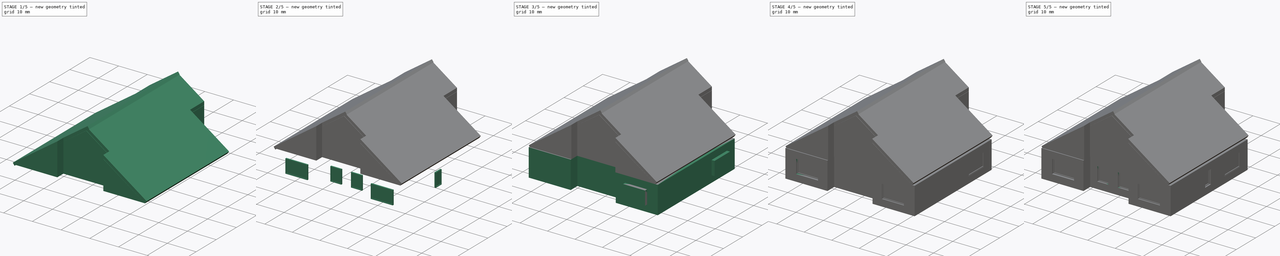
[diagram: build sequence overview — one tinted view per stage of 5, left to right]
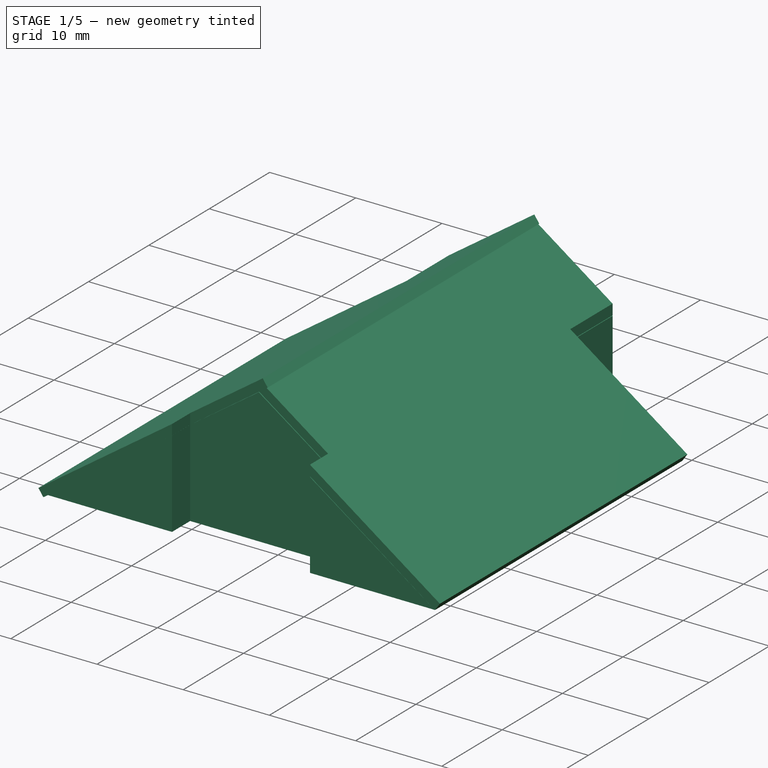
[diagram: stage 1 of 5 — iso view after this stage's code; geometry added in this stage tinted green]
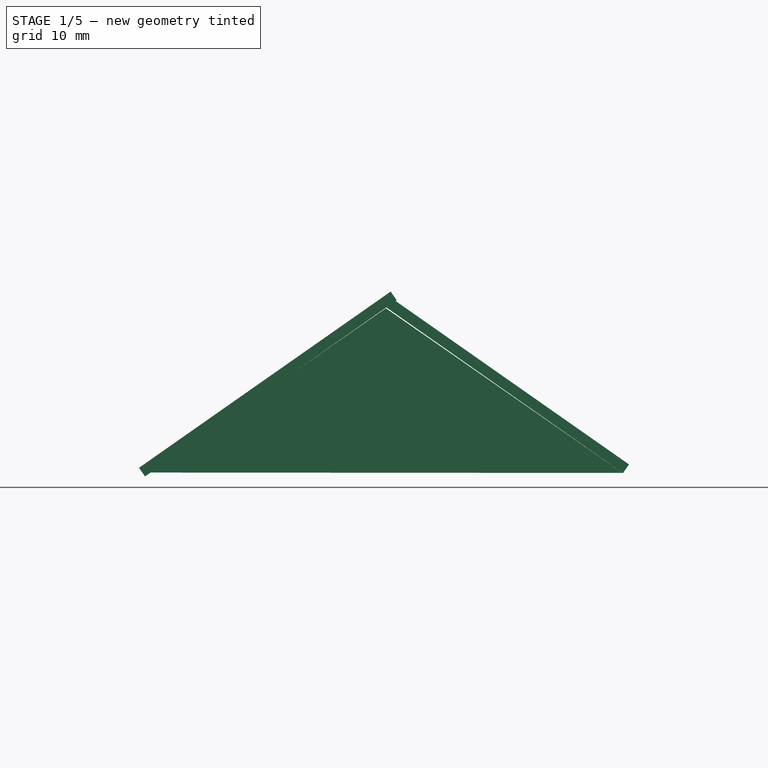
[diagram: stage 1 of 5 — front view after this stage's code; geometry added in this stage tinted green]
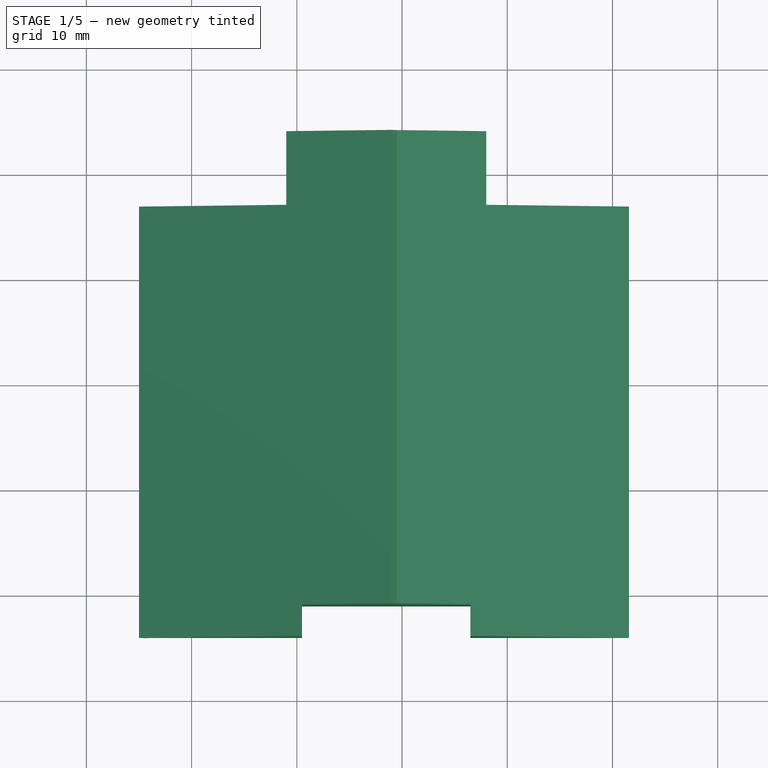
[diagram: stage 1 of 5 — top view after this stage's code; geometry added in this stage tinted green]
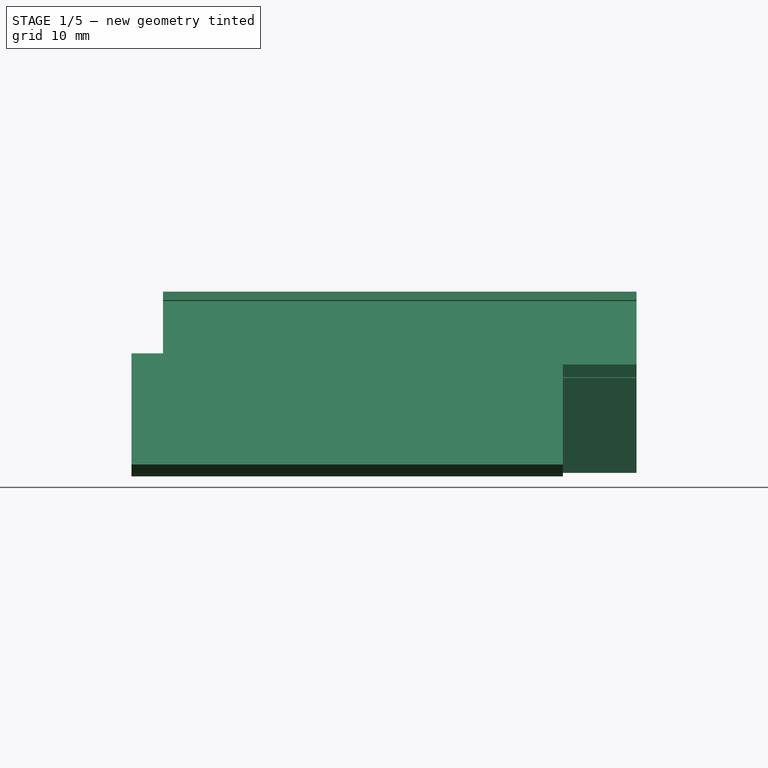
[diagram: stage 1 of 5 — right view after this stage's code; geometry added in this stage tinted green]
FCSTD DOCUMENT  (FreeCAD 0.18R4 (GitTag))
Label: house
License: All rights reserved
LicenseURL: http://en.wikipedia.org/wiki/All_rights_reserved
objects: Sketcher::SketchObject×20, Part::Box×15, Part::Cut×13, Part::FeaturePython×11, PartDesign::Pocket×8, Part::MultiFuse×3, PartDesign::Pad×1, PartDesign::Body×1, Image::ImagePlane×1
note: 81 computed .brp shape members not serialized (recipe doc carries the construction recipe); baked Part::Feature solids carry a one-line shape summary decoded from their .brp

FEATURE [Part::Box] Box010  label="Куб010"
  AttacherType = Attacher::AttachEngine3D
  Height = 28
  Length = 1
  Placement = pos=(21,-24,10) rot=(0,-1,0;0.959931rad)
  Width = 48
FEATURE [Part::Box] Box011  label="Куб011"
  AttacherType = Attacher::AttachEngine3D
  Height = 29.2
  Length = 1
  Placement = pos=(-25,-24,10.5) rot=(0,1,0;0.959931rad)
  Width = 48
FEATURE [Part::MultiFuse] Fusion001
  Shapes = -> [Box011,Box010]
FEATURE [Part::Box] Box012  label="Куб012"
  AttacherType = Attacher::AttachEngine3D
  Height = 21
  Length = 14
  Placement = pos=(-25,17,0) rot=(0,0,1;0rad)
  Width = 7
FEATURE [Part::MultiFuse] Fusion002
  Shapes = -> [Fusion001]
FEATURE [Part::Box] Box013  label="Куб013"
  AttacherType = Attacher::AttachEngine3D
  Height = 21
  Length = 14
  Placement = pos=(8,17,0) rot=(0,0,1;0rad)
  Width = 7
FEATURE [Part::Cut] Cut010
  Base = -> Fusion002
  Tool = -> Box013
FEATURE [Part::Cut] Cut011
  Base = -> Cut010
  Tool = -> Box012
FEATURE [Part::Box] Box014  label="Куб014"
  AttacherType = Attacher::AttachEngine3D
  Height = 30
  Length = 16
  Placement = pos=(-9.5,-24,0) rot=(0,0,1;0rad)
  Width = 3
FEATURE [Part::Cut] Cut012
  Base = -> Cut011
  Tool = -> Box014
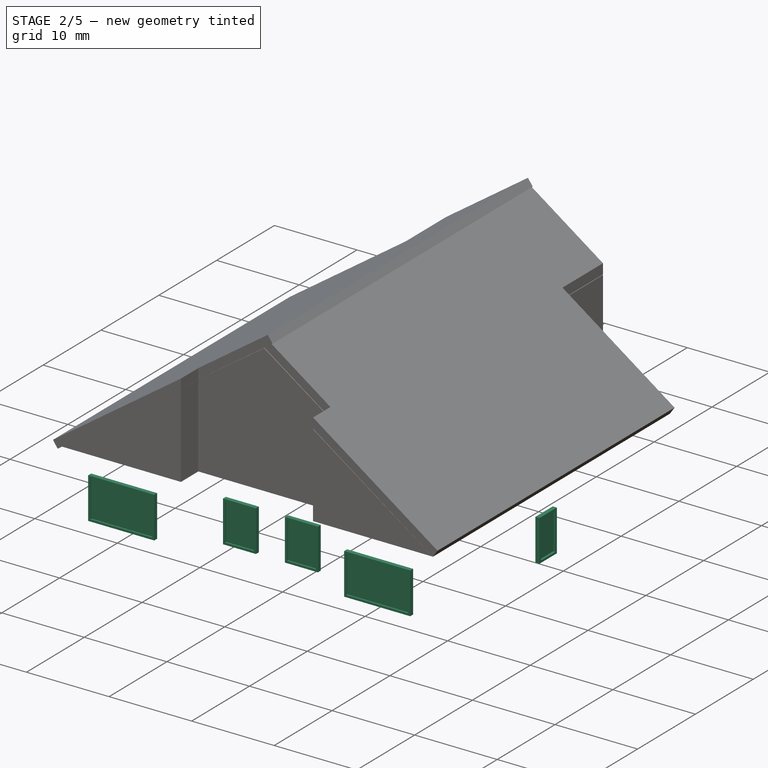
[diagram: stage 2 of 5 — iso view after this stage's code; geometry added in this stage tinted green]
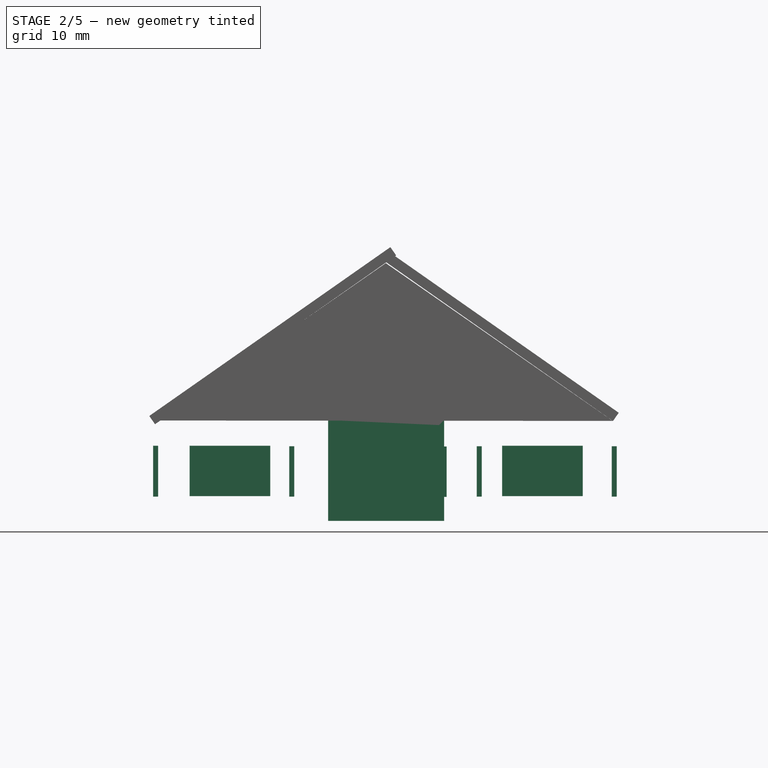
[diagram: stage 2 of 5 — front view after this stage's code; geometry added in this stage tinted green]
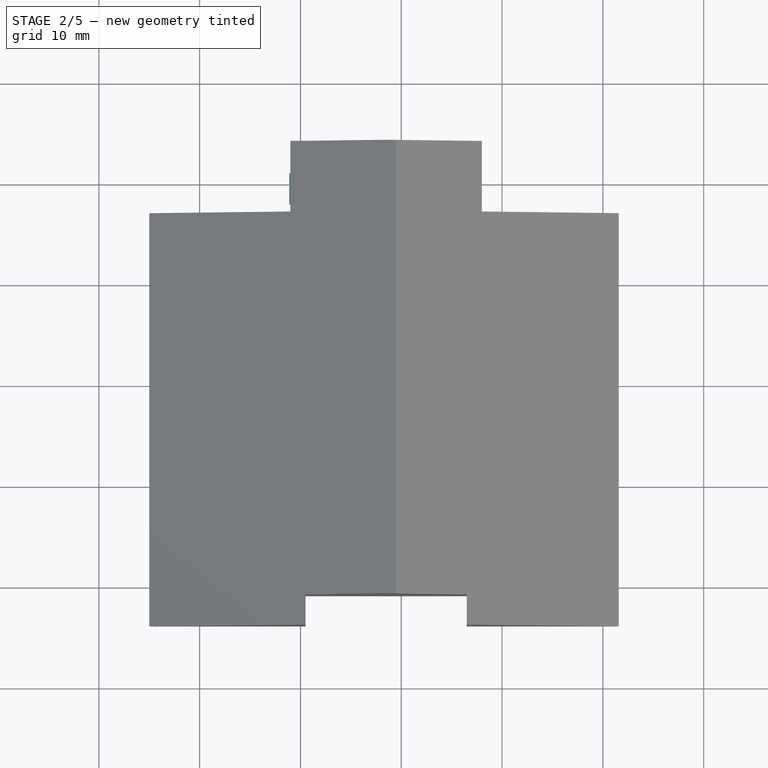
[diagram: stage 2 of 5 — top view after this stage's code; geometry added in this stage tinted green]
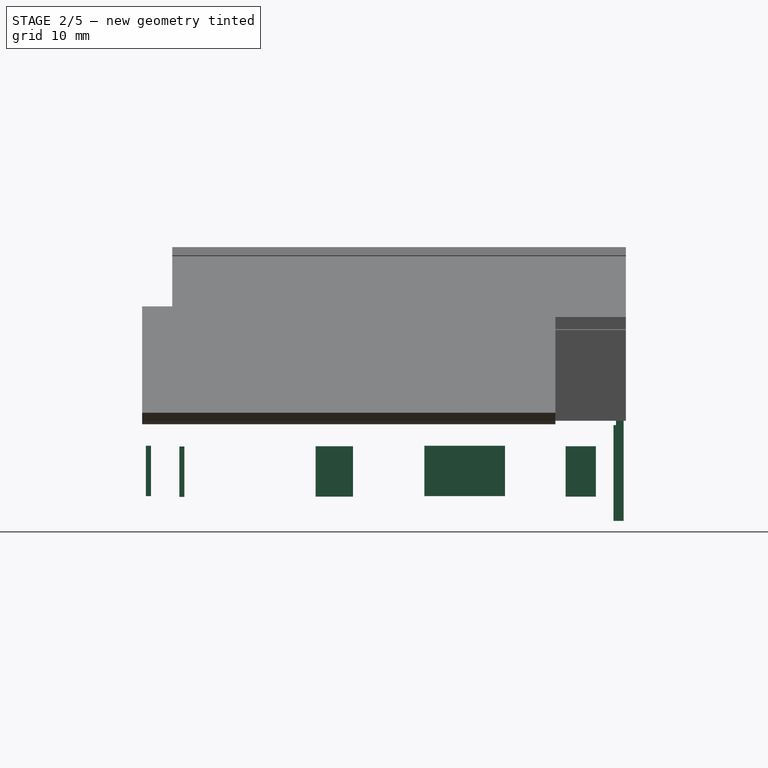
[diagram: stage 2 of 5 — right view after this stage's code; geometry added in this stage tinted green]
FEATURE [Sketcher::SketchObject] Sketch010
  Placement = pos=(21.882,12,2.54706) rot=(0.57735,0.57735,0.57735;2.0944rad)
  sketch-geometry (8):
    g0: LineSegment StartX=0 StartY=0 StartZ=0 EndX=8 EndY=0 EndZ=0
    g1: LineSegment StartX=8 StartY=0 StartZ=0 EndX=8 EndY=5 EndZ=0
    g2: LineSegment StartX=8 StartY=5 StartZ=0 EndX=0 EndY=5 EndZ=0
    g3: LineSegment StartX=0 StartY=5 StartZ=0 EndX=0 EndY=0 EndZ=0
    g4: LineSegment StartX=0.25 StartY=0.25 StartZ=0 EndX=7.75 EndY=0.25 EndZ=0
    g5: LineSegment StartX=7.75 StartY=0.25 StartZ=0 EndX=7.75 EndY=4.75 EndZ=0
    g6: LineSegment StartX=7.75 StartY=4.75 StartZ=0 EndX=0.25 EndY=4.75 EndZ=0
    g7: LineSegment StartX=0.25 StartY=4.75 StartZ=0 EndX=0.25 EndY=0.25 EndZ=0
  constraints (23):
    c: Coincident(g0,g1)
    c: Coincident(g1,g2)
    c: Coincident(g2,g3)
    c: Coincident(g3,g0)
    c: Horizontal(g0)
    c: Horizontal(g2)
    c: Vertical(g1)
    c: Vertical(g3)
    c: Coincident(g4,g5)
    c: Coincident(g5,g6)
    c: Coincident(g6,g7)
    c: Coincident(g7,g4)
    c: Horizontal(g4)
    c: Horizontal(g6)
    c: Vertical(g5)
    c: Vertical(g7)
    c: DistanceY(g1) = 5  'Height'
    c: DistanceX(g0) = 8  'Width'
    c: DistanceY(g6,g2) = 0.25  'Frame1'
    c: DistanceX(g2,g6) = 0.25  'Frame2'
    c: DistanceX(g4,g0) = 0.25  'Frame3'
    c: DistanceY(g0,g4) = 0.25  'Frame4'
    c: Coincident(g0,g-1)
FEATURE [Part::FeaturePython] Window001  # Arch/BIM object (typed FeaturePython)
  Area = 40
  Base = -> Sketch010
  Frame = 0.25
  Height = 5
  HoleDepth = 0
  HoleWire = 0
  HorizontalArea = 0
  IfcRole = 160
  LouvreSpacing = 0
  LouvreWidth = 0
  MoveWithHost = true
  Normal = (-1,0,0)
  Opening = 0
  PerimeterLength = 0
  Placement = pos=(-46,-8,0) rot=(0,0,1;0rad)
  Preset = 1
  SymbolElevation = false
  SymbolPlan = false
  VerticalArea = 0
  Width = 8
  WindowParts = OuterFrame | Frame | Wire0,Wire1 | 0.25+V | 0.00+V | Glass | Glass panel | Wire1 | 0.05 | 0.25+V
FEATURE [Sketcher::SketchObject] Sketch011
  Placement = pos=(21.882,12,2.54706) rot=(0.57735,0.57735,0.57735;2.0944rad)
  sketch-geometry (8):
    g0: LineSegment StartX=0 StartY=0 StartZ=0 EndX=8 EndY=0 EndZ=0
    g1: LineSegment StartX=8 StartY=0 StartZ=0 EndX=8 EndY=5 EndZ=0
    g2: LineSegment StartX=8 StartY=5 StartZ=0 EndX=0 EndY=5 EndZ=0
    g3: LineSegment StartX=0 StartY=5 StartZ=0 EndX=0 EndY=0 EndZ=0
    g4: LineSegment StartX=0.25 StartY=0.25 StartZ=0 EndX=7.75 EndY=0.25 EndZ=0
    g5: LineSegment StartX=7.75 StartY=0.25 StartZ=0 EndX=7.75 EndY=4.75 EndZ=0
    g6: LineSegment StartX=7.75 StartY=4.75 StartZ=0 EndX=0.25 EndY=4.75 EndZ=0
    g7: LineSegment StartX=0.25 StartY=4.75 StartZ=0 EndX=0.25 EndY=0.25 EndZ=0
  constraints (23):
    c: Coincident(g0,g1)
    c: Coincident(g1,g2)
    c: Coincident(g2,g3)
    c: Coincident(g3,g0)
    c: Horizontal(g0)
    c: Horizontal(g2)
    c: Vertical(g1)
    c: Vertical(g3)
    c: Coincident(g4,g5)
    c: Coincident(g5,g6)
    c: Coincident(g6,g7)
    c: Coincident(g7,g4)
    c: Horizontal(g4)
    c: Horizontal(g6)
    c: Vertical(g5)
    c: Vertical(g7)
    c: DistanceY(g1) = 5  'Height'
    c: DistanceX(g0) = 8  'Width'
    c: DistanceY(g6,g2) = 0.25  'Frame1'
    c: DistanceX(g2,g6) = 0.25  'Frame2'
    c: DistanceX(g4,g0) = 0.25  'Frame3'
    c: DistanceY(g0,g4) = 0.25  'Frame4'
    c: Coincident(g0,g-1)
FEATURE [Part::FeaturePython] Window002  # Arch/BIM object (typed FeaturePython)
  Area = 40
  Base = -> Sketch011
  Frame = 0.25
  Height = 5
  HoleDepth = 0
  HoleWire = 0
  HorizontalArea = 0
  IfcRole = 160
  LouvreSpacing = 0
  LouvreWidth = 0
  MoveWithHost = true
  Normal = (-1,0,0)
  Opening = 0
  PerimeterLength = 0
  Placement = pos=(-1,-45,0) rot=(0,0,1;1.5708rad)
  Preset = 1
  SymbolElevation = false
  SymbolPlan = false
  VerticalArea = 0
  Width = 8
  WindowParts = OuterFrame | Frame | Wire0,Wire1 | 0.25+V | 0.00+V | Glass | Glass panel | Wire1 | 0.05 | 0.25+V
FEATURE [Sketcher::SketchObject] Sketch012
  Placement = pos=(21.882,12,2.54706) rot=(0.57735,0.57735,0.57735;2.0944rad)
  sketch-geometry (8):
    g0: LineSegment StartX=0 StartY=0 StartZ=0 EndX=8 EndY=0 EndZ=0
    g1: LineSegment StartX=8 StartY=0 StartZ=0 EndX=8 EndY=5 EndZ=0
    g2: LineSegment StartX=8 StartY=5 StartZ=0 EndX=0 EndY=5 EndZ=0
    g3: LineSegment StartX=0 StartY=5 StartZ=0 EndX=0 EndY=0 EndZ=0
    g4: LineSegment StartX=0.25 StartY=0.25 StartZ=0 EndX=7.75 EndY=0.25 EndZ=0
    g5: LineSegment StartX=7.75 StartY=0.25 StartZ=0 EndX=7.75 EndY=4.75 EndZ=0
    g6: LineSegment StartX=7.75 StartY=4.75 StartZ=0 EndX=0.25 EndY=4.75 EndZ=0
    g7: LineSegment StartX=0.25 StartY=4.75 StartZ=0 EndX=0.25 EndY=0.25 EndZ=0
  constraints (23):
    c: Coincident(g0,g1)
    c: Coincident(g1,g2)
    c: Coincident(g2,g3)
    c: Coincident(g3,g0)
    c: Horizontal(g0)
    c: Horizontal(g2)
    c: Vertical(g1)
    c: Vertical(g3)
    c: Coincident(g4,g5)
    c: Coincident(g5,g6)
    c: Coincident(g6,g7)
    c: Coincident(g7,g4)
    c: Horizontal(g4)
    c: Horizontal(g6)
    c: Vertical(g5)
    c: Vertical(g7)
    c: DistanceY(g1) = 5  'Height'
    c: DistanceX(g0) = 8  'Width'
    c: DistanceY(g6,g2) = 0.25  'Frame1'
    c: DistanceX(g2,g6) = 0.25  'Frame2'
    c: DistanceX(g4,g0) = 0.25  'Frame3'
    c: DistanceY(g0,g4) = 0.25  'Frame4'
    c: Coincident(g0,g-1)
FEATURE [Part::FeaturePython] Window003  # Arch/BIM object (typed FeaturePython)
  Area = 40
  Base = -> Sketch012
  Frame = 0.25
  Height = 5
  HoleDepth = 0
  HoleWire = 0
  HorizontalArea = 0
  IfcRole = 160
  LouvreSpacing = 0
  LouvreWidth = 0
  MoveWithHost = true
  Normal = (-1,0,0)
  Opening = 0
  PerimeterLength = 0
  Placement = pos=(30,-45,0) rot=(0,0,1;1.5708rad)
  Preset = 1
  SymbolElevation = false
  SymbolPlan = false
  VerticalArea = 0
  Width = 8
  WindowParts = OuterFrame | Frame | Wire0,Wire1 | 0.25+V | 0.00+V | Glass | Glass panel | Wire1 | 0.05 | 0.25+V
FEATURE [Sketcher::SketchObject] Sketch013
  Placement = pos=(21.882,-3.08029,2.5) rot=(0.57735,0.57735,0.57735;2.0944rad)
  sketch-geometry (8):
    g0: LineSegment StartX=0 StartY=0 StartZ=0 EndX=3 EndY=0 EndZ=0
    g1: LineSegment StartX=3 StartY=0 StartZ=0 EndX=3 EndY=5 EndZ=0
    g2: LineSegment StartX=3 StartY=5 StartZ=0 EndX=0 EndY=5 EndZ=0
    g3: LineSegment StartX=0 StartY=5 StartZ=0 EndX=0 EndY=0 EndZ=0
    g4: LineSegment StartX=0.25 StartY=0.25 StartZ=0 EndX=2.75 EndY=0.25 EndZ=0
    g5: LineSegment StartX=2.75 StartY=0.25 StartZ=0 EndX=2.75 EndY=4.75 EndZ=0
    g6: LineSegment StartX=2.75 StartY=4.75 StartZ=0 EndX=0.25 EndY=4.75 EndZ=0
    g7: LineSegment StartX=0.25 StartY=4.75 StartZ=0 EndX=0.25 EndY=0.25 EndZ=0
  constraints (23):
    c: Coincident(g0,g1)
    c: Coincident(g1,g2)
    c: Coincident(g2,g3)
    c: Coincident(g3,g0)
    c: Horizontal(g0)
    c: Horizontal(g2)
    c: Vertical(g1)
    c: Vertical(g3)
    c: Coincident(g4,g5)
    c: Coincident(g5,g6)
    c: Coincident(g6,g7)
    c: Coincident(g7,g4)
    c: Horizontal(g4)
    c: Horizontal(g6)
    c: Vertical(g5)
    c: Vertical(g7)
    c: DistanceY(g1) = 5  'Height'
    c: DistanceX(g0) = 3  'Width'
    c: DistanceY(g6,g2) = 0.25  'Frame1'
    c: DistanceX(g2,g6) = 0.25  'Frame2'
    c: DistanceX(g4,g0) = 0.25  'Frame3'
    c: DistanceY(g0,g4) = 0.25  'Frame4'
    c: Coincident(g0,g-1)
FEATURE [Part::FeaturePython] Window004  # Arch/BIM object (typed FeaturePython)
  Area = 15
  Base = -> Sketch013
  Frame = 0.25
  Height = 5
  HoleDepth = 0
  HoleWire = 0
  HorizontalArea = 0
  IfcRole = 160
  LouvreSpacing = 0
  LouvreWidth = 0
  MoveWithHost = true
  Normal = (-1,0,0)
  Opening = 0
  PerimeterLength = 0
  Placement = pos=(-0.5,-3,0) rot=(0,0,1;0rad)
  Preset = 1
  SymbolElevation = false
  SymbolPlan = false
  VerticalArea = 0
  Width = 3
  WindowParts = OuterFrame | Frame | Wire0,Wire1 | 0.25+V | 0.00+V | Glass | Glass panel | Wire1 | 0.05 | 0.25+V
FEATURE [Sketcher::SketchObject] Sketch014
  Placement = pos=(21.882,-3.08029,2.5) rot=(0.57735,0.57735,0.57735;2.0944rad)
  sketch-geometry (8):
    g0: LineSegment StartX=0 StartY=0 StartZ=0 EndX=3 EndY=0 EndZ=0
    g1: LineSegment StartX=3 StartY=0 StartZ=0 EndX=3 EndY=5 EndZ=0
    g2: LineSegment StartX=3 StartY=5 StartZ=0 EndX=0 EndY=5 EndZ=0
    g3: LineSegment StartX=0 StartY=5 StartZ=0 EndX=0 EndY=0 EndZ=0
    g4: LineSegment StartX=0.25 StartY=0.25 StartZ=0 EndX=2.75 EndY=0.25 EndZ=0
    g5: LineSegment StartX=2.75 StartY=0.25 StartZ=0 EndX=2.75 EndY=4.75 EndZ=0
    g6: LineSegment StartX=2.75 StartY=4.75 StartZ=0 EndX=0.25 EndY=4.75 EndZ=0
    g7: LineSegment StartX=0.25 StartY=4.75 StartZ=0 EndX=0.25 EndY=0.25 EndZ=0
  constraints (23):
    c: Coincident(g0,g1)
    c: Coincident(g1,g2)
    c: Coincident(g2,g3)
    c: Coincident(g3,g0)
    c: Horizontal(g0)
    c: Horizontal(g2)
    c: Vertical(g1)
    c: Vertical(g3)
    c: Coincident(g4,g5)
    c: Coincident(g5,g6)
    c: Coincident(g6,g7)
    c: Coincident(g7,g4)
    c: Horizontal(g4)
    c: Horizontal(g6)
    c: Vertical(g5)
    c: Vertical(g7)
    c: DistanceY(g1) = 5  'Height'
    c: DistanceX(g0) = 3  'Width'
    c: DistanceY(g6,g2) = 0.25  'Frame1'
    c: DistanceX(g2,g6) = 0.25  'Frame2'
    c: DistanceX(g4,g0) = 0.25  'Frame3'
    c: DistanceY(g0,g4) = 0.25  'Frame4'
    c: Coincident(g0,g-1)
FEATURE [Part::FeaturePython] Window005  # Arch/BIM object (typed FeaturePython)
  Area = 15
  Base = -> Sketch014
  Frame = 0.25
  Height = 5
  HoleDepth = 0
  HoleWire = 0
  HorizontalArea = 0
  IfcRole = 160
  LouvreSpacing = 0
  LouvreWidth = 0
  MoveWithHost = true
  Normal = (-1,0,0)
  Opening = 0
  PerimeterLength = 0
  Placement = pos=(-46,-3.7,0) rot=(0,0,1;0rad)
  Preset = 1
  SymbolElevation = false
  SymbolPlan = false
  VerticalArea = 0
  Width = 3
  WindowParts = OuterFrame | Frame | Wire0,Wire1 | 0.25+V | 0.00+V | Glass | Glass panel | Wire1 | 0.05 | 0.25+V
FEATURE [Sketcher::SketchObject] Sketch015
  Placement = pos=(21.882,-3.08029,2.5) rot=(0.57735,0.57735,0.57735;2.0944rad)
  sketch-geometry (8):
    g0: LineSegment StartX=0 StartY=0 StartZ=0 EndX=3 EndY=0 EndZ=0
    g1: LineSegment StartX=3 StartY=0 StartZ=0 EndX=3 EndY=5 EndZ=0
    g2: LineSegment StartX=3 StartY=5 StartZ=0 EndX=0 EndY=5 EndZ=0
    g3: LineSegment StartX=0 StartY=5 StartZ=0 EndX=0 EndY=0 EndZ=0
    g4: LineSegment StartX=0.25 StartY=0.25 StartZ=0 EndX=2.75 EndY=0.25 EndZ=0
    g5: LineSegment StartX=2.75 StartY=0.25 StartZ=0 EndX=2.75 EndY=4.75 EndZ=0
    g6: LineSegment StartX=2.75 StartY=4.75 StartZ=0 EndX=0.25 EndY=4.75 EndZ=0
    g7: LineSegment StartX=0.25 StartY=4.75 StartZ=0 EndX=0.25 EndY=0.25 EndZ=0
  constraints (23):
    c: Coincident(g0,g1)
    c: Coincident(g1,g2)
    c: Coincident(g2,g3)
    c: Coincident(g3,g0)
    c: Horizontal(g0)
    c: Horizontal(g2)
    c: Vertical(g1)
    c: Vertical(g3)
    c: Coincident(g4,g5)
    c: Coincident(g5,g6)
    c: Coincident(g6,g7)
    c: Coincident(g7,g4)
    c: Horizontal(g4)
    c: Horizontal(g6)
    c: Vertical(g5)
    c: Vertical(g7)
    c: DistanceY(g1) = 5  'Height'
    c: DistanceX(g0) = 3  'Width'
    c: DistanceY(g6,g2) = 0.25  'Frame1'
    c: DistanceX(g2,g6) = 0.25  'Frame2'
    c: DistanceX(g4,g0) = 0.25  'Frame3'
    c: DistanceY(g0,g4) = 0.25  'Frame4'
    c: Coincident(g0,g-1)
FEATURE [Part::FeaturePython] Window006  # Arch/BIM object (typed FeaturePython)
  Area = 15
  Base = -> Sketch015
  Frame = 0.25
  Height = 5
  HoleDepth = 0
  HoleWire = 0
  HorizontalArea = 0
  IfcRole = 160
  LouvreSpacing = 0
  LouvreWidth = 0
  MoveWithHost = true
  Normal = (-1,0,0)
  Opening = 0
  PerimeterLength = 0
  Placement = pos=(-13.9,21.1,0) rot=(0,0,1;0rad)
  Preset = 1
  SymbolElevation = false
  SymbolPlan = false
  VerticalArea = 0
  Width = 3
  WindowParts = OuterFrame | Frame | Wire0,Wire1 | 0.25+V | 0.00+V | Glass | Glass panel | Wire1 | 0.05 | 0.25+V
FEATURE [Sketcher::SketchObject] Sketch016
  Placement = pos=(21.882,-3.08029,2.5) rot=(0.57735,0.57735,0.57735;2.0944rad)
  sketch-geometry (8):
    g0: LineSegment StartX=0 StartY=0 StartZ=0 EndX=3 EndY=0 EndZ=0
    g1: LineSegment StartX=3 StartY=0 StartZ=0 EndX=3 EndY=5 EndZ=0
    g2: LineSegment StartX=3 StartY=5 StartZ=0 EndX=0 EndY=5 EndZ=0
    g3: LineSegment StartX=0 StartY=5 StartZ=0 EndX=0 EndY=0 EndZ=0
    g4: LineSegment StartX=0.25 StartY=0.25 StartZ=0 EndX=2.75 EndY=0.25 EndZ=0
    g5: LineSegment StartX=2.75 StartY=0.25 StartZ=0 EndX=2.75 EndY=4.75 EndZ=0
    g6: LineSegment StartX=2.75 StartY=4.75 StartZ=0 EndX=0.25 EndY=4.75 EndZ=0
    g7: LineSegment StartX=0.25 StartY=4.75 StartZ=0 EndX=0.25 EndY=0.25 EndZ=0
  constraints (23):
    c: Coincident(g0,g1)
    c: Coincident(g1,g2)
    c: Coincident(g2,g3)
    c: Coincident(g3,g0)
    c: Horizontal(g0)
    c: Horizontal(g2)
    c: Vertical(g1)
    c: Vertical(g3)
    c: Coincident(g4,g5)
    c: Coincident(g5,g6)
    c: Coincident(g6,g7)
    c: Coincident(g7,g4)
    c: Horizontal(g4)
    c: Horizontal(g6)
    c: Vertical(g5)
    c: Vertical(g7)
    c: DistanceY(g1) = 5  'Height'
    c: DistanceX(g0) = 3  'Width'
    c: DistanceY(g6,g2) = 0.25  'Frame1'
    c: DistanceX(g2,g6) = 0.25  'Frame2'
    c: DistanceX(g4,g0) = 0.25  'Frame3'
    c: DistanceY(g0,g4) = 0.25  'Frame4'
    c: Coincident(g0,g-1)
FEATURE [Part::FeaturePython] Window007  # Arch/BIM object (typed FeaturePython)
  Area = 15
  Base = -> Sketch016
  Frame = 0.25
  Height = 5
  HoleDepth = 0
  HoleWire = 0
  HorizontalArea = 0
  IfcRole = 160
  LouvreSpacing = 0
  LouvreWidth = 0
  MoveWithHost = true
  Normal = (-1,0,0)
  Opening = 0
  PerimeterLength = 0
  Placement = pos=(-32.5,21.1,0) rot=(0,0,1;0rad)
  Preset = 1
  SymbolElevation = false
  SymbolPlan = false
  VerticalArea = 0
  Width = 3
  WindowParts = OuterFrame | Frame | Wire0,Wire1 | 0.25+V | 0.00+V | Glass | Glass panel | Wire1 | 0.05 | 0.25+V
FEATURE [Sketcher::SketchObject] Sketch017
  Placement = pos=(0.5,-20.7736,2.69784) rot=(0,0,1;0rad)
  sketch-geometry (8):
    g0: LineSegment StartX=0 StartY=0 StartZ=0 EndX=4 EndY=0 EndZ=0
    g1: LineSegment StartX=4 StartY=0 StartZ=0 EndX=4 EndY=5 EndZ=0
    g2: LineSegment StartX=4 StartY=5 StartZ=0 EndX=0 EndY=5 EndZ=0
    g3: LineSegment StartX=0 StartY=5 StartZ=0 EndX=0 EndY=0 EndZ=0
    g4: LineSegment StartX=0.25 StartY=0.25 StartZ=0 EndX=3.75 EndY=0.25 EndZ=0
    g5: LineSegment StartX=3.75 StartY=0.25 StartZ=0 EndX=3.75 EndY=4.75 EndZ=0
    g6: LineSegment StartX=3.75 StartY=4.75 StartZ=0 EndX=0.25 EndY=4.75 EndZ=0
    g7: LineSegment StartX=0.25 StartY=4.75 StartZ=0 EndX=0.25 EndY=0.25 EndZ=0
  constraints (23):
    c: Coincident(g0,g1)
    c: Coincident(g1,g2)
    c: Coincident(g2,g3)
    c: Coincident(g3,g0)
    c: Horizontal(g0)
    c: Horizontal(g2)
    c: Vertical(g1)
    c: Vertical(g3)
    c: Coincident(g4,g5)
    c: Coincident(g5,g6)
    c: Coincident(g6,g7)
    c: Coincident(g7,g4)
    c: Horizontal(g4)
    c: Horizontal(g6)
    c: Vertical(g5)
    c: Vertical(g7)
    c: DistanceY(g1) = 5  'Height'
    c: DistanceX(g0) = 4  'Width'
    c: DistanceY(g6,g2) = 0.25  'Frame1'
    c: DistanceX(g2,g6) = 0.25  'Frame2'
    c: DistanceX(g4,g0) = 0.25  'Frame3'
    c: DistanceY(g0,g4) = 0.25  'Frame4'
    c: Coincident(g0,g-1)
FEATURE [Part::FeaturePython] Window008  # Arch/BIM object (typed FeaturePython)
  Area = 20
  Base = -> Sketch017
  Frame = 0.25
  Height = 5
  HoleDepth = 0
  HoleWire = 0
  HorizontalArea = 0
  IfcRole = 160
  LouvreSpacing = 0
  LouvreWidth = 0
  MoveWithHost = true
  Normal = (0,0,-1)
  Opening = 0
  PerimeterLength = 0
  Placement = pos=(0,-22.5,-13.3) rot=(-1,0,0;1.5708rad)
  Preset = 1
  SymbolElevation = false
  SymbolPlan = false
  VerticalArea = 0
  Width = 4
  WindowParts = OuterFrame | Frame | Wire0,Wire1 | 0.25+V | 0.00+V | Glass | Glass panel | Wire1 | 0.05 | 0.25+V
FEATURE [Sketcher::SketchObject] Sketch018
  Placement = pos=(0.5,-20.7736,2.69784) rot=(0,0,1;0rad)
  sketch-geometry (8):
    g0: LineSegment StartX=0 StartY=0 StartZ=0 EndX=4 EndY=0 EndZ=0
    g1: LineSegment StartX=4 StartY=0 StartZ=0 EndX=4 EndY=5 EndZ=0
    g2: LineSegment StartX=4 StartY=5 StartZ=0 EndX=0 EndY=5 EndZ=0
    g3: LineSegment StartX=0 StartY=5 StartZ=0 EndX=0 EndY=0 EndZ=0
    g4: LineSegment StartX=0.25 StartY=0.25 StartZ=0 EndX=3.75 EndY=0.25 EndZ=0
    g5: LineSegment StartX=3.75 StartY=0.25 StartZ=0 EndX=3.75 EndY=4.75 EndZ=0
    g6: LineSegment StartX=3.75 StartY=4.75 StartZ=0 EndX=0.25 EndY=4.75 EndZ=0
    g7: LineSegment StartX=0.25 StartY=4.75 StartZ=0 EndX=0.25 EndY=0.25 EndZ=0
  constraints (23):
    c: Coincident(g0,g1)
    c: Coincident(g1,g2)
    c: Coincident(g2,g3)
    c: Coincident(g3,g0)
    c: Horizontal(g0)
    c: Horizontal(g2)
    c: Vertical(g1)
    c: Vertical(g3)
    c: Coincident(g4,g5)
    c: Coincident(g5,g6)
    c: Coincident(g6,g7)
    c: Coincident(g7,g4)
    c: Horizontal(g4)
    c: Horizontal(g6)
    c: Vertical(g5)
    c: Vertical(g7)
    c: DistanceY(g1) = 5  'Height'
    c: DistanceX(g0) = 4  'Width'
    c: DistanceY(g6,g2) = 0.25  'Frame1'
    c: DistanceX(g2,g6) = 0.25  'Frame2'
    c: DistanceX(g4,g0) = 0.25  'Frame3'
    c: DistanceY(g0,g4) = 0.25  'Frame4'
    c: Coincident(g0,g-1)
FEATURE [Part::FeaturePython] Window009  # Arch/BIM object (typed FeaturePython)
  Area = 20
  Base = -> Sketch018
  Frame = 0.25
  Height = 5
  HoleDepth = 0
  HoleWire = 0
  HorizontalArea = 0
  IfcRole = 160
  LouvreSpacing = 0
  LouvreWidth = 0
  MoveWithHost = true
  Normal = (0,0,-1)
  Opening = 0
  PerimeterLength = 0
  Placement = pos=(-7.5,-22.5,-13.3) rot=(-1,0,0;1.5708rad)
  Preset = 1
  SymbolElevation = false
  SymbolPlan = false
  VerticalArea = 0
  Width = 4
  WindowParts = OuterFrame | Frame | Wire0,Wire1 | 0.25+V | 0.00+V | Glass | Glass panel | Wire1 | 0.05 | 0.25+V
FEATURE [Sketcher::SketchObject] Sketch019
  Placement = pos=(4.24728,23.7686,0.0962126) rot=(0,0.707107,0.707107;3.14159rad)
  sketch-geometry (8):
    g0: LineSegment StartX=0 StartY=0 StartZ=0 EndX=11.5 EndY=0 EndZ=0
    g1: LineSegment StartX=11.5 StartY=0 StartZ=0 EndX=11.5 EndY=10 EndZ=0
    g2: LineSegment StartX=11.5 StartY=10 StartZ=0 EndX=0 EndY=10 EndZ=0
    g3: LineSegment StartX=0 StartY=10 StartZ=0 EndX=0 EndY=0 EndZ=0
    g4: LineSegment StartX=0.5 StartY=0 StartZ=0 EndX=11 EndY=0 EndZ=0
    g5: LineSegment StartX=11 StartY=0 StartZ=0 EndX=11 EndY=9.5 EndZ=0
    g6: LineSegment StartX=11 StartY=9.5 StartZ=0 EndX=0.5 EndY=9.5 EndZ=0
    g7: LineSegment StartX=0.5 StartY=9.5 StartZ=0 EndX=0.5 EndY=0 EndZ=0
  constraints (23):
    c: Coincident(g0,g1)
    c: Coincident(g1,g2)
    c: Coincident(g2,g3)
    c: Coincident(g3,g0)
    c: Horizontal(g0)
    c: Horizontal(g2)
    c: Vertical(g1)
    c: Vertical(g3)
    c: Coincident(g4,g5)
    c: Coincident(g5,g6)
    c: Coincident(g6,g7)
    c: Coincident(g7,g4)
    c: Horizontal(g4)
    c: Horizontal(g6)
    c: Vertical(g5)
    c: Vertical(g7)
    c: DistanceY(g1) = 10  'Height'
    c: DistanceX(g0) = 11.5  'Width'
    c: DistanceY(g6,g2) = 0.5  'Frame1'
    c: DistanceX(g2,g6) = 0.5  'Frame2'
    c: DistanceX(g4,g0) = 0.5  'Frame3'
    c: DistanceY(g0,g4) = 0
    c: Coincident(g0,g-1)
FEATURE [Part::FeaturePython] Window010  label="Дверь"  # Arch/BIM object (typed FeaturePython)
  Area = 110
  Base = -> Sketch019
  Frame = 0.5
  Height = 10
  HoleDepth = 0
  HoleWire = 0
  HorizontalArea = 0
  IfcRole = 42
  LouvreSpacing = 0
  LouvreWidth = 0
  MoveWithHost = true
  Normal = (0,-1,2e-16)
  Opening = 0
  PerimeterLength = 0
  Preset = 6
  SymbolElevation = false
  SymbolPlan = false
  VerticalArea = 0
  Width = 11
  WindowParts = OuterFrame | Frame | Wire0,Wire1 | 0.25+V | 0.00+V | Door | Solid panel | Wire1 | 0.5 | 0.5+V
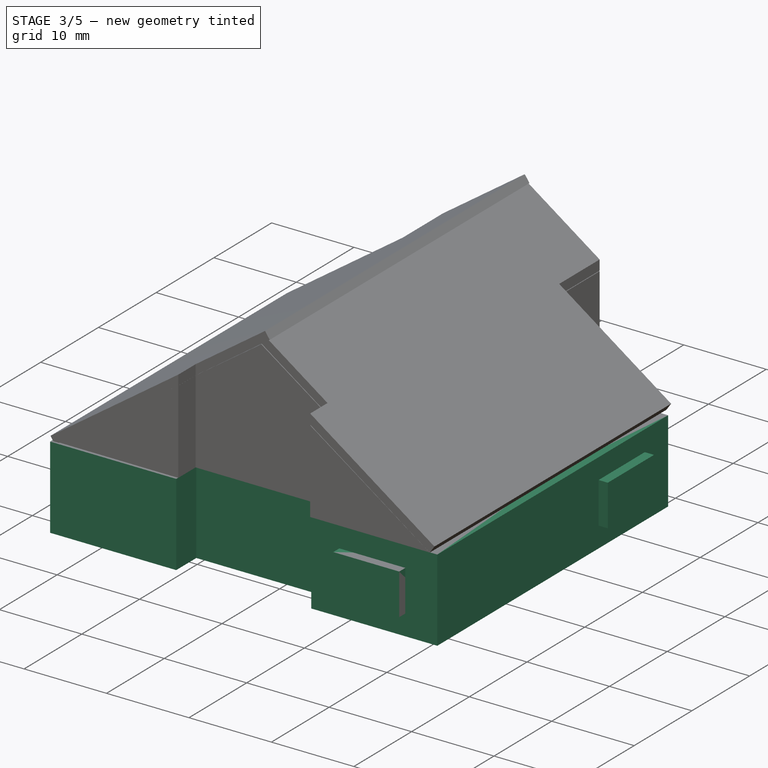
[diagram: stage 3 of 5 — iso view after this stage's code; geometry added in this stage tinted green]
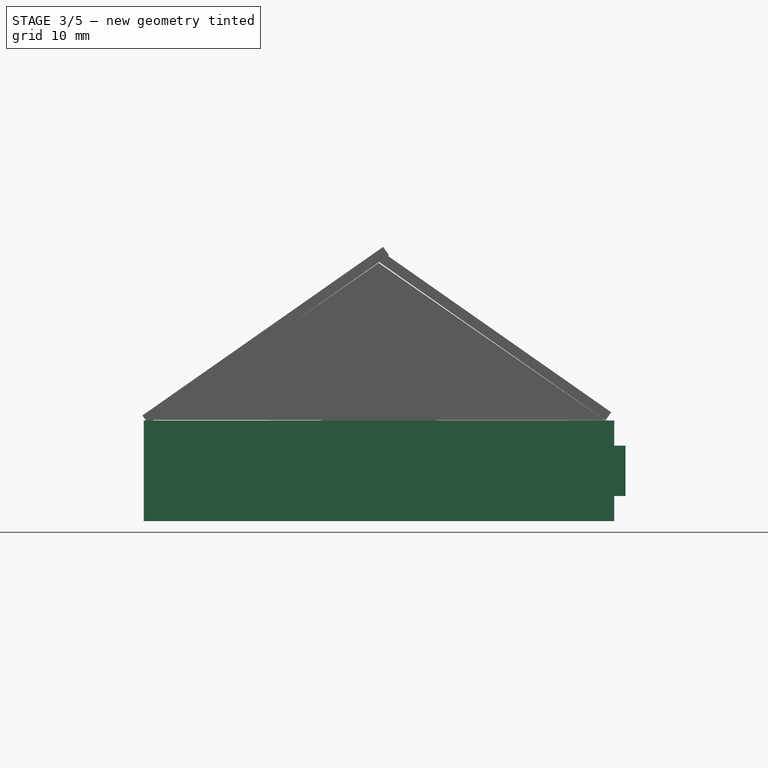
[diagram: stage 3 of 5 — front view after this stage's code; geometry added in this stage tinted green]
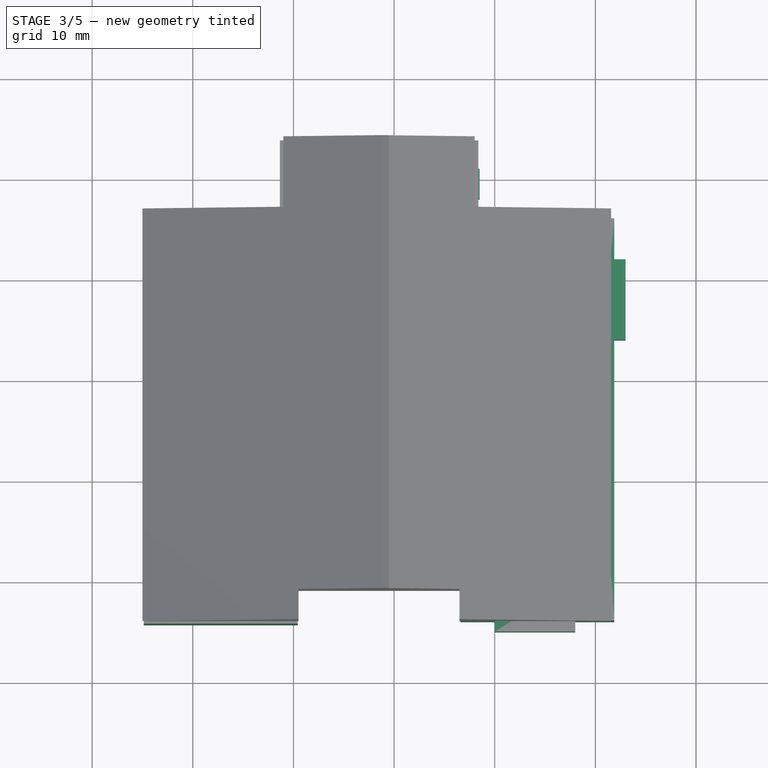
[diagram: stage 3 of 5 — top view after this stage's code; geometry added in this stage tinted green]
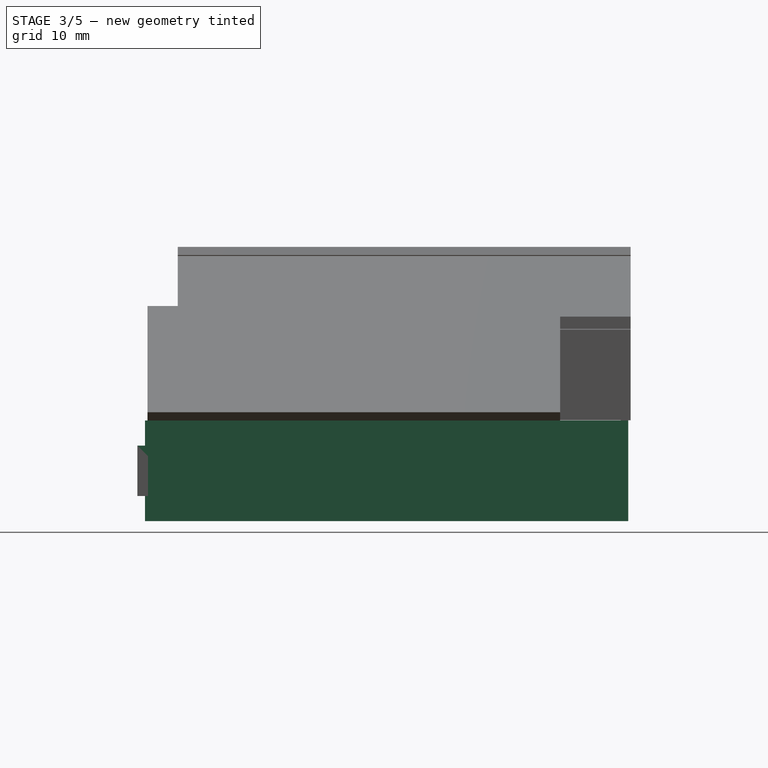
[diagram: stage 3 of 5 — right view after this stage's code; geometry added in this stage tinted green]
FEATURE [Sketcher::SketchObject] Sketch
  MapMode = 5
  Support = -> [XY_Plane]
  sketch-geometry (12):
    g0: LineSegment StartX=-24.87 StartY=16.3956 StartZ=0 EndX=-11.341 EndY=16.3956 EndZ=0
    g1: LineSegment StartX=-11.341 StartY=16.3956 StartZ=0 EndX=-11.341 EndY=23.7686 EndZ=0
    g2: LineSegment StartX=-11.341 StartY=23.7686 StartZ=0 EndX=8.37961 EndY=23.7686 EndZ=0
    g3: LineSegment StartX=8.37961 StartY=23.7686 StartZ=0 EndX=8.37961 EndY=16.0402 EndZ=0
    g4: LineSegment StartX=8.37961 StartY=16.0402 StartZ=0 EndX=21.882 EndY=16.0402 EndZ=0
    g5: LineSegment StartX=21.882 StartY=16.0402 StartZ=0 EndX=21.882 EndY=-23.9438 EndZ=0
    g6: LineSegment StartX=21.882 StartY=-23.9438 StartZ=0 EndX=6.59481 EndY=-23.9438 EndZ=0
    g7: LineSegment StartX=6.59481 StartY=-23.9438 StartZ=0 EndX=6.59481 EndY=-20.7736 EndZ=0
    g8: LineSegment StartX=6.59481 StartY=-20.7736 StartZ=0 EndX=-9.57251 EndY=-20.7736 EndZ=0
    g9: LineSegment StartX=-9.57251 StartY=-20.7736 StartZ=0 EndX=-9.57251 EndY=-24.2504 EndZ=0
    g10: LineSegment StartX=-9.57251 StartY=-24.2504 StartZ=0 EndX=-24.87 EndY=-24.2504 EndZ=0
    g11: LineSegment StartX=-24.87 StartY=-24.2504 StartZ=0 EndX=-24.87 EndY=16.3956 EndZ=0
  constraints (24):
    c: Coincident(g0,g1)
    c: Coincident(g1,g2)
    c: Coincident(g2,g3)
    c: Coincident(g3,g4)
    c: Coincident(g4,g5)
    c: Coincident(g5,g6)
    c: Coincident(g6,g7)
    c: Coincident(g7,g8)
    c: Coincident(g8,g9)
    c: Coincident(g9,g10)
    c: Coincident(g10,g11)
    c: Coincident(g11,g0)
    c: Horizontal(g0)
    c: Horizontal(g2)
    c: Horizontal(g4)
    c: Horizontal(g6)
    c: Horizontal(g10)
    c: Horizontal(g8)
    c: Vertical(g3)
    c: Vertical(g1)
    c: Vertical(g11)
    c: Vertical(g5)
    c: Vertical(g7)
    c: Vertical(g9)
FEATURE [PartDesign::Pad] Pad
  Length = 10
  Length2 = 100
  Profile = -> Sketch
  Type = 0
FEATURE [Sketcher::SketchObject] Sketch001
  MapMode = 5
  Support = -> [XY_Plane]
  sketch-geometry (12):
    g0: LineSegment StartX=7.04285 StartY=14.4932 StartZ=0 EndX=7.04285 EndY=-0.376181 EndZ=0
    g1: LineSegment StartX=20.3205 StartY=-0.392844 StartZ=0 EndX=20.3205 EndY=4.4334 EndZ=0
    g2: LineSegment StartX=20.3205 StartY=4.4334 StartZ=0 EndX=20.3205 EndY=12.1074 EndZ=0
    g3: LineSegment StartX=20.3205 StartY=12.1074 StartZ=0 EndX=20.3205 EndY=14.4932 EndZ=0
    g4: LineSegment StartX=20.3205 StartY=14.4932 StartZ=0 EndX=11.3472 EndY=14.4932 EndZ=0
    g5: LineSegment StartX=11.3472 StartY=14.4932 StartZ=0 EndX=7.7371 EndY=14.4932 EndZ=0
    g6: LineSegment StartX=7.7371 StartY=14.4932 StartZ=0 EndX=7.04285 EndY=14.4932 EndZ=0
    g7: LineSegment StartX=7.04285 StartY=-0.376181 StartZ=0 EndX=7.60472 EndY=-0.376181 EndZ=0
    g8: LineSegment StartX=7.60472 StartY=-0.376181 StartZ=0 EndX=7.60472 EndY=-0.938048 EndZ=0
    g9: LineSegment StartX=7.60472 StartY=-0.938048 StartZ=0 EndX=10.5297 EndY=-0.938048 EndZ=0
    g10: LineSegment StartX=10.5297 StartY=-0.938048 StartZ=0 EndX=10.5297 EndY=-0.392844 EndZ=0
    g11: LineSegment StartX=10.5297 StartY=-0.392844 StartZ=0 EndX=20.3205 EndY=-0.392844 EndZ=0
  constraints (24):
    c: Coincident(g3,g4)
    c: Coincident(g6,g0)
    c: Vertical(g3)
    c: Vertical(g0)
    c: Vertical(g2)
    c: Vertical(g1)
    c: Horizontal(g5)
    c: Horizontal(g6)
    c: Horizontal(g4)
    c: Coincident(g7,g8)
    c: Coincident(g8,g9)
    c: Coincident(g9,g10)
    c: Coincident(g10,g11)
    c: Horizontal(g11)
    c: Horizontal(g7)
    c: Horizontal(g9)
    c: Vertical(g10)
    c: Vertical(g8)
    c: Coincident(g11,g1)
    c: Coincident(g7,g0)
    c: Coincident(g2,g1)
    c: Coincident(g2,g3)
    c: Coincident(g5,g6)
    c: Coincident(g4,g5)
FEATURE [PartDesign::Pocket] Pocket
  BaseFeature = -> Pad
  Length = 5
  Length2 = 100
  Midplane = true
  Profile = -> Sketch001
  Type = 1
FEATURE [Sketcher::SketchObject] Sketch002
  MapMode = 5
  Support = -> [XY_Plane]
  sketch-geometry (16):
    g0: LineSegment StartX=6.56227 StartY=-8.69751 StartZ=0 EndX=6.56227 EndY=17.7305 EndZ=0
    g1: LineSegment StartX=6.56227 StartY=17.7305 StartZ=0 EndX=6.56227 EndY=20.9724 EndZ=0
    g2: LineSegment StartX=6.56227 StartY=20.9724 StartZ=0 EndX=6.56227 EndY=22.2055 EndZ=0
    g3: LineSegment StartX=6.56227 StartY=22.2055 StartZ=0 EndX=4.24728 EndY=22.2055 EndZ=0
    g4: LineSegment StartX=4.24728 StartY=22.2055 StartZ=0 EndX=4.24728 EndY=23.7714 EndZ=0
    g5: LineSegment StartX=4.24728 StartY=23.7714 StartZ=0 EndX=-7.20871 EndY=23.7714 EndZ=0
    g6: LineSegment StartX=-7.20871 StartY=23.7714 StartZ=0 EndX=-7.20871 EndY=22.2361 EndZ=0
    g7: LineSegment StartX=-7.20871 StartY=22.2361 StartZ=0 EndX=-9.57997 EndY=22.2361 EndZ=0
    g8: LineSegment StartX=-9.57997 StartY=22.2361 StartZ=0 EndX=-9.57997 EndY=20.5016 EndZ=0
    g9: LineSegment StartX=-9.57997 StartY=20.5016 StartZ=0 EndX=-9.57997 EndY=17.7259 EndZ=0
    g10: LineSegment StartX=-9.57997 StartY=17.7259 StartZ=0 EndX=-9.57997 EndY=-8.85971 EndZ=0
    g11: LineSegment StartX=-9.57997 StartY=-8.85971 StartZ=0 EndX=-5.78053 EndY=-8.85971 EndZ=0
    g12: LineSegment StartX=-5.78053 StartY=-8.85971 StartZ=0 EndX=-5.78053 EndY=-9.247 EndZ=0
    g13: LineSegment StartX=-5.78053 StartY=-9.247 StartZ=0 EndX=-1.99692 EndY=-9.247 EndZ=0
    g14: LineSegment StartX=-1.99692 StartY=-9.247 StartZ=0 EndX=-1.99692 EndY=-8.69751 EndZ=0
    g15: LineSegment StartX=-1.99692 StartY=-8.69751 StartZ=0 EndX=6.56227 EndY=-8.69751 EndZ=0
  constraints (32):
    c: Coincident(g2,g3)
    c: Coincident(g3,g4)
    c: Coincident(g4,g5)
    c: Coincident(g5,g6)
    c: Coincident(g6,g7)
    c: Coincident(g7,g8)
    c: Coincident(g10,g11)
    c: Coincident(g11,g12)
    c: Coincident(g12,g13)
    c: Coincident(g13,g14)
    c: Coincident(g14,g15)
    c: Coincident(g15,g0)
    c: Horizontal(g15)
    c: Horizontal(g13)
    c: Horizontal(g11)
    c: Horizontal(g3)
    c: Horizontal(g5)
    c: Horizontal(g7)
    c: Vertical(g6)
    c: Vertical(g8)
    c: Vertical(g9)
    c: Vertical(g1)
    c: Vertical(g2)
    c: Vertical(g4)
    c: Vertical(g14)
    c: Vertical(g12)
    c: Vertical(g10)
    c: Vertical(g0)
    c: Coincident(g2,g1)
    c: Coincident(g0,g1)
    c: Coincident(g9,g8)
    c: Coincident(g9,g10)
FEATURE [PartDesign::Pocket] Pocket001
  BaseFeature = -> Pocket
  Length = 5
  Length2 = 100
  Midplane = true
  Profile = -> Sketch002
  Type = 1
FEATURE [Sketcher::SketchObject] Sketch003
  MapMode = 5
  Support = -> [XY_Plane]
  sketch-geometry (12):
    g0: LineSegment StartX=-9.5557 StartY=14.5825 StartZ=0 EndX=-11.2511 EndY=14.5825 EndZ=0
    g1: LineSegment StartX=-11.2511 StartY=14.5825 StartZ=0 EndX=-14.1407 EndY=14.5825 EndZ=0
    g2: LineSegment StartX=-14.1407 StartY=14.5825 StartZ=0 EndX=-23.2443 EndY=14.5825 EndZ=0
    g3: LineSegment StartX=-23.2443 StartY=14.5825 StartZ=0 EndX=-23.2443 EndY=10.9163 EndZ=0
    g4: LineSegment StartX=-23.2443 StartY=10.9163 StartZ=0 EndX=-23.2443 EndY=3.17551 EndZ=0
    g5: LineSegment StartX=-23.2443 StartY=3.17551 StartZ=0 EndX=-23.2443 EndY=-3.02484 EndZ=0
    g6: LineSegment StartX=-23.2443 StartY=-3.02484 StartZ=0 EndX=-14.5434 EndY=-3.02484 EndZ=0
    g7: LineSegment StartX=-14.5434 StartY=-3.02484 StartZ=0 EndX=-14.5434 EndY=-0.542157 EndZ=0
    g8: LineSegment StartX=-14.5434 StartY=-0.542157 StartZ=0 EndX=-13.9138 EndY=-0.542157 EndZ=0
    g9: LineSegment StartX=-13.9138 StartY=-0.542157 StartZ=0 EndX=-13.9138 EndY=-3.31915 EndZ=0
    g10: LineSegment StartX=-13.9138 StartY=-3.31915 StartZ=0 EndX=-9.5557 EndY=-3.31915 EndZ=0
    g11: LineSegment StartX=-9.5557 StartY=-3.31915 StartZ=0 EndX=-9.5557 EndY=14.5825 EndZ=0
  constraints (24):
    c: Coincident(g5,g6)
    c: Coincident(g6,g7)
    c: Coincident(g7,g8)
    c: Coincident(g8,g9)
    c: Coincident(g9,g10)
    c: Coincident(g10,g11)
    c: Coincident(g11,g0)
    c: Vertical(g11)
    c: Vertical(g3)
    c: Vertical(g4)
    c: Vertical(g5)
    c: Vertical(g9)
    c: Vertical(g7)
    c: Horizontal(g6)
    c: Horizontal(g10)
    c: Horizontal(g8)
    c: Horizontal(g1)
    c: Horizontal(g0)
    c: Coincident(g1,g2)
    c: Coincident(g0,g1)
    c: Horizontal(g2)
    c: Coincident(g5,g4)
    c: Coincident(g4,g3)
    c: Coincident(g3,g2)
FEATURE [PartDesign::Pocket] Pocket002
  BaseFeature = -> Pocket001
  Length = 5
  Length2 = 100
  Midplane = true
  Profile = -> Sketch003
  Type = 1
FEATURE [Sketcher::SketchObject] Sketch004
  MapMode = 5
  Support = -> [XY_Plane]
  sketch-geometry (22):
    g0: LineSegment StartX=-23.2657 StartY=-7.57667 StartZ=0 EndX=-23.2657 EndY=-22.2742 EndZ=0
    g1: LineSegment StartX=-23.2657 StartY=-22.2742 StartZ=0 EndX=-20.9998 EndY=-22.2742 EndZ=0
    g2: LineSegment StartX=-20.9998 StartY=-22.2742 StartZ=0 EndX=-13.2324 EndY=-22.2742 EndZ=0
    g3: LineSegment StartX=-13.2324 StartY=-22.2742 StartZ=0 EndX=-11.3328 EndY=-22.2742 EndZ=0
    g4: LineSegment StartX=-11.3328 StartY=-22.2742 StartZ=0 EndX=-11.3328 EndY=-18.9565 EndZ=0
    g5: LineSegment StartX=-11.3328 StartY=-18.9565 StartZ=0 EndX=-9.91609 EndY=-18.9565 EndZ=0
    g6: LineSegment StartX=-9.91609 StartY=-18.9565 StartZ=0 EndX=-9.91609 EndY=-7.50945 EndZ=0
    g7: LineSegment StartX=-9.91609 StartY=-7.50945 StartZ=0 EndX=-10.5981 EndY=-7.50945 EndZ=0
    g8: LineSegment StartX=-10.5981 StartY=-7.50945 StartZ=0 EndX=-10.5981 EndY=-6.94527 EndZ=0
    g9: LineSegment StartX=-10.5981 StartY=-6.94527 StartZ=0 EndX=-9.38497 EndY=-6.94527 EndZ=0
    g10: LineSegment StartX=-9.38497 StartY=-6.94527 StartZ=0 EndX=-9.38497 EndY=-0.656561 EndZ=0
    g11: LineSegment StartX=-13.8727 StartY=-3.57133 StartZ=0 EndX=-23.4146 EndY=-3.57133 EndZ=0
    g12: LineSegment StartX=-23.4146 StartY=-3.57133 StartZ=0 EndX=-23.4146 EndY=-7.05972 EndZ=0
    g13: LineSegment StartX=-23.4146 StartY=-7.05972 StartZ=0 EndX=-14.5096 EndY=-7.05972 EndZ=0
    g14: LineSegment StartX=-14.5096 StartY=-7.05972 StartZ=0 EndX=-14.5096 EndY=-6.30465 EndZ=0
    g15: LineSegment StartX=-14.5096 StartY=-6.30465 StartZ=0 EndX=-13.8758 EndY=-6.30465 EndZ=0
    g16: LineSegment StartX=-13.8758 StartY=-6.30465 StartZ=0 EndX=-13.8758 EndY=-7.07875 EndZ=0
    g17: LineSegment StartX=-13.8758 StartY=-7.07875 StartZ=0 EndX=-13.3795 EndY=-7.07875 EndZ=0
    g18: LineSegment StartX=-13.3795 StartY=-7.07875 StartZ=0 EndX=-13.3795 EndY=-7.57667 EndZ=0
    g19: LineSegment StartX=-13.3795 StartY=-7.57667 StartZ=0 EndX=-23.2657 EndY=-7.57667 EndZ=0
    g20: LineSegment StartX=-13.8727 StartY=-3.57133 StartZ=0 EndX=-13.8727 EndY=-0.656561 EndZ=0
    g21: LineSegment StartX=-13.8727 StartY=-0.656561 StartZ=0 EndX=-9.38497 EndY=-0.656561 EndZ=0
  constraints (44):
    c: Coincident(g0,g1)
    c: Coincident(g3,g4)
    c: Coincident(g4,g5)
    c: Coincident(g5,g6)
    c: Coincident(g6,g7)
    c: Coincident(g7,g8)
    c: Coincident(g8,g9)
    c: Coincident(g9,g10)
    c: Coincident(g11,g12)
    c: Coincident(g12,g13)
    c: Coincident(g13,g14)
    c: Coincident(g14,g15)
    c: Coincident(g15,g16)
    c: Coincident(g16,g17)
    c: Coincident(g17,g18)
    c: Coincident(g18,g19)
    c: Coincident(g19,g0)
    c: Horizontal(g13)
    c: Horizontal(g19)
    c: Horizontal(g11)
    c: Horizontal(g9)
    c: Horizontal(g7)
    c: Horizontal(g17)
    c: Horizontal(g15)
    c: Horizontal(g5)
    c: Horizontal(g3)
    c: Horizontal(g1)
    c: Horizontal(g2)
    c: Vertical(g16)
    c: Vertical(g14)
    c: Vertical(g18)
    c: Vertical(g8)
    c: Vertical(g10)
    c: Vertical(g12)
    c: Vertical(g0)
    c: Vertical(g6)
    c: Vertical(g4)
    c: Coincident(g10,g21)
    c: Horizontal(g21)
    c: Vertical(g20)
    c: Coincident(g21,g20)
    c: Coincident(g20,g11)
    c: Coincident(g3,g2)
    c: Coincident(g1,g2)
FEATURE [PartDesign::Pocket] Pocket003
  BaseFeature = -> Pocket002
  Length = 5
  Length2 = 100
  Midplane = true
  Profile = -> Sketch004
  Type = 1
FEATURE [Sketcher::SketchObject] Sketch005
  MapMode = 5
  Support = -> [XY_Plane]
  sketch-geometry (10):
    g0: LineSegment StartX=-9.45957 StartY=-9.28646 StartZ=0 EndX=-9.45957 EndY=-18.9983 EndZ=0
    g1: LineSegment StartX=-9.45957 StartY=-18.9983 StartZ=0 EndX=-6.99323 EndY=-18.9983 EndZ=0
    g2: LineSegment StartX=-6.99323 StartY=-18.9983 StartZ=0 EndX=-2.81149 EndY=-18.9983 EndZ=0
    g3: LineSegment StartX=-2.81149 StartY=-18.9983 StartZ=0 EndX=-1.42501 EndY=-18.9983 EndZ=0
    g4: LineSegment StartX=-1.42501 StartY=-18.9983 StartZ=0 EndX=-1.42501 EndY=-9.29216 EndZ=0
    g5: LineSegment StartX=-1.42501 StartY=-9.29216 StartZ=0 EndX=-1.95218 EndY=-9.29216 EndZ=0
    g6: LineSegment StartX=-1.95218 StartY=-9.29216 StartZ=0 EndX=-1.95218 EndY=-8.49997 EndZ=0
    g7: LineSegment StartX=-1.95218 StartY=-8.49997 StartZ=0 EndX=-5.90124 EndY=-8.49997 EndZ=0
    g8: LineSegment StartX=-5.90124 StartY=-8.49997 StartZ=0 EndX=-5.90124 EndY=-9.28646 EndZ=0
    g9: LineSegment StartX=-5.90124 StartY=-9.28646 StartZ=0 EndX=-9.45957 EndY=-9.28646 EndZ=0
  constraints (20):
    c: Coincident(g0,g1)
    c: Coincident(g3,g4)
    c: Coincident(g4,g5)
    c: Coincident(g5,g6)
    c: Coincident(g7,g8)
    c: Coincident(g8,g9)
    c: Coincident(g9,g0)
    c: Horizontal(g9)
    c: Horizontal(g7)
    c: Vertical(g8)
    c: Vertical(g0)
    c: Vertical(g6)
    c: Vertical(g4)
    c: Horizontal(g5)
    c: Horizontal(g2)
    c: Horizontal(g3)
    c: Horizontal(g1)
    c: Coincident(g7,g6)
    c: Coincident(g1,g2)
    c: Coincident(g3,g2)
FEATURE [PartDesign::Pocket] Pocket004
  BaseFeature = -> Pocket003
  Length = 5
  Length2 = 100
  Midplane = true
  Profile = -> Sketch005
  Type = 1
FEATURE [PartDesign::Body] Body
  Group = -> [Sketch,Pad,Sketch001,Pocket,Sketch002,Pocket001,Sketch003,Pocket002,Sketch004,Pocket003,Sketch005,Pocket004,Sketch006,Pocket005,Sketch007,Pocket006,Sketch008,Pocket007]
  Origin = -> Origin
  Tip = -> Pocket007
FEATURE [Image::ImagePlane] ImagePlane
  XSize = 54
  YSize = 65
FEATURE [Part::Box] Box  label="Куб"
  AttacherType = Attacher::AttachEngine3D
  Height = 5
  Length = 5
  Placement = pos=(18,4,2.5) rot=(0,0,1;0rad)
  Width = 8
FEATURE [Part::Box] Box002  label="Куб002"
  AttacherType = Attacher::AttachEngine3D
  Height = 5
  Length = 8
  Placement = pos=(10,-25,2.5) rot=(0,0,1;0rad)
  Width = 5
FEATURE [Part::Box] Box004  label="Куб004"
  AttacherType = Attacher::AttachEngine3D
  Height = 5
  Length = 5
  Placement = pos=(3.5,18,2.5) rot=(0,0,1;0rad)
  Width = 3
FEATURE [Sketcher::SketchObject] Sketch009
  Placement = pos=(21.882,12,2.54706) rot=(0.57735,0.57735,0.57735;2.0944rad)
  sketch-geometry (8):
    g0: LineSegment StartX=0 StartY=0 StartZ=0 EndX=8 EndY=0 EndZ=0
    g1: LineSegment StartX=8 StartY=0 StartZ=0 EndX=8 EndY=5 EndZ=0
    g2: LineSegment StartX=8 StartY=5 StartZ=0 EndX=0 EndY=5 EndZ=0
    g3: LineSegment StartX=0 StartY=5 StartZ=0 EndX=0 EndY=0 EndZ=0
    g4: LineSegment StartX=0.25 StartY=0.25 StartZ=0 EndX=7.75 EndY=0.25 EndZ=0
    g5: LineSegment StartX=7.75 StartY=0.25 StartZ=0 EndX=7.75 EndY=4.75 EndZ=0
    g6: LineSegment StartX=7.75 StartY=4.75 StartZ=0 EndX=0.25 EndY=4.75 EndZ=0
    g7: LineSegment StartX=0.25 StartY=4.75 StartZ=0 EndX=0.25 EndY=0.25 EndZ=0
  constraints (23):
    c: Coincident(g0,g1)
    c: Coincident(g1,g2)
    c: Coincident(g2,g3)
    c: Coincident(g3,g0)
    c: Horizontal(g0)
    c: Horizontal(g2)
    c: Vertical(g1)
    c: Vertical(g3)
    c: Coincident(g4,g5)
    c: Coincident(g5,g6)
    c: Coincident(g6,g7)
    c: Coincident(g7,g4)
    c: Horizontal(g4)
    c: Horizontal(g6)
    c: Vertical(g5)
    c: Vertical(g7)
    c: DistanceY(g1) = 5  'Height'
    c: DistanceX(g0) = 8  'Width'
    c: DistanceY(g6,g2) = 0.25  'Frame1'
    c: DistanceX(g2,g6) = 0.25  'Frame2'
    c: DistanceX(g4,g0) = 0.25  'Frame3'
    c: DistanceY(g0,g4) = 0.25  'Frame4'
    c: Coincident(g0,g-1)
FEATURE [Part::FeaturePython] Window  # Arch/BIM object (typed FeaturePython)
  Area = 40
  Base = -> Sketch009
  Frame = 0.25
  Height = 5
  HoleDepth = 0
  HoleWire = 0
  HorizontalArea = 0
  IfcRole = 160
  LouvreSpacing = 0
  LouvreWidth = 0
  MoveWithHost = true
  Normal = (-1,0,0)
  Opening = 0
  PerimeterLength = 0
  Placement = pos=(0,-8,0) rot=(0,0,1;0rad)
  Preset = 1
  SymbolElevation = false
  SymbolPlan = false
  VerticalArea = 0
  Width = 8
  WindowParts = OuterFrame | Frame | Wire0,Wire1 | 0.25+V | 0.00+V | Glass | Glass panel | Wire1 | 0.05 | 0.25+V
FEATURE [Part::MultiFuse] Fusion
  Shapes = -> [Window001,Window,Window010,Window009,Window007,Window004,Window002,Window003,Window006,Window005,Window008]
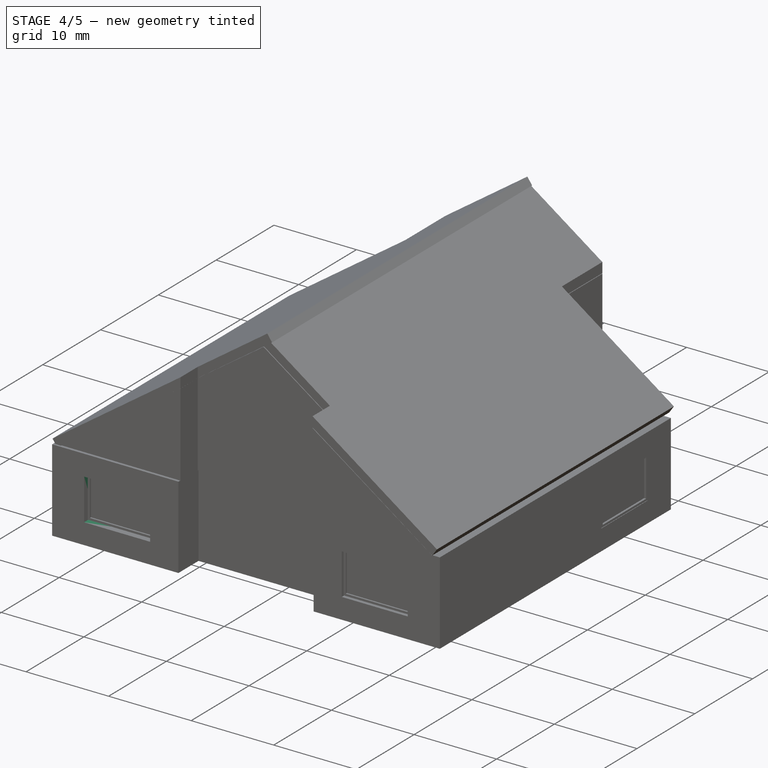
[diagram: stage 4 of 5 — iso view after this stage's code; geometry added in this stage tinted green]
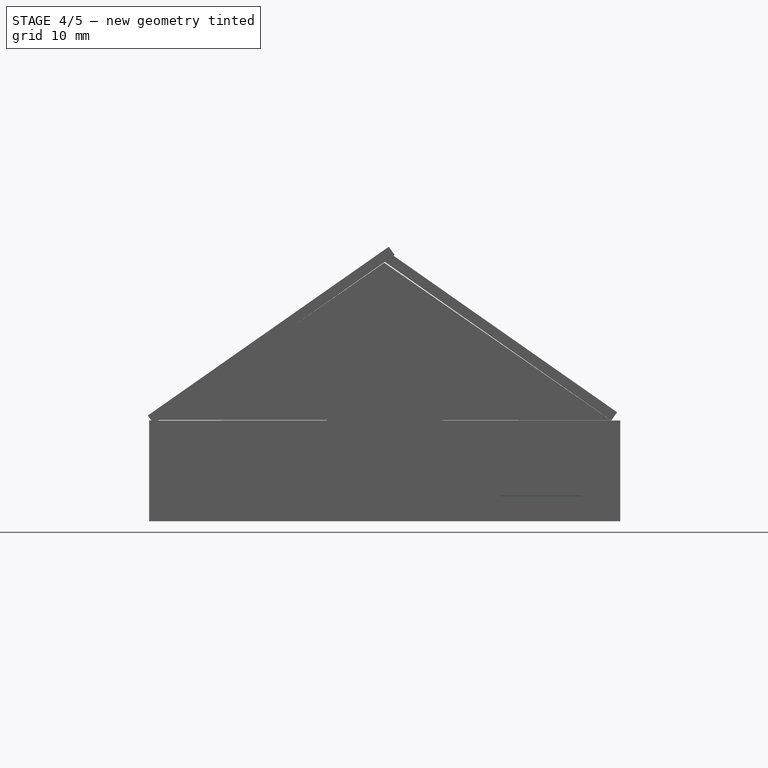
[diagram: stage 4 of 5 — front view after this stage's code; geometry added in this stage tinted green]
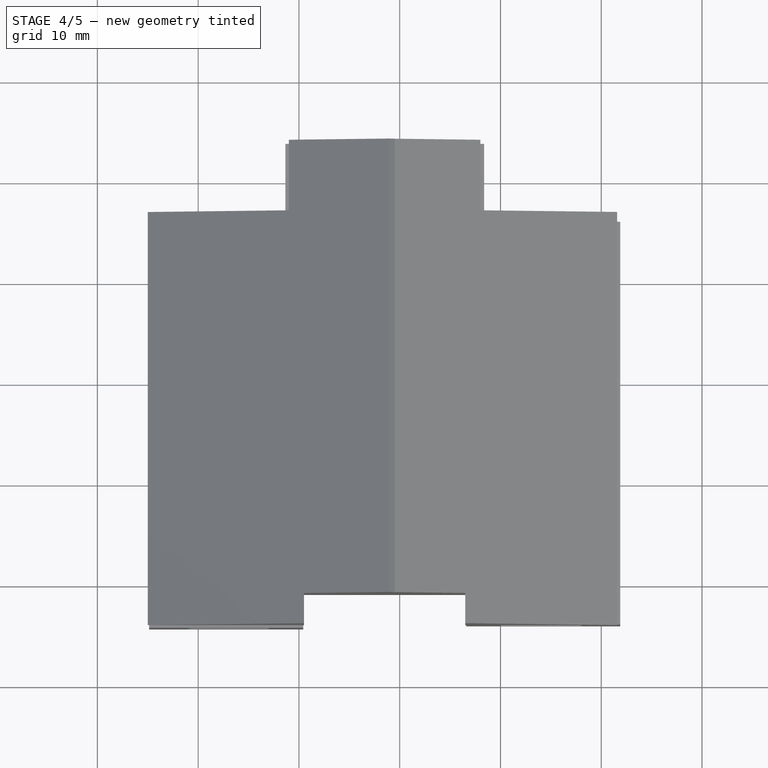
[diagram: stage 4 of 5 — top view after this stage's code; geometry added in this stage tinted green]
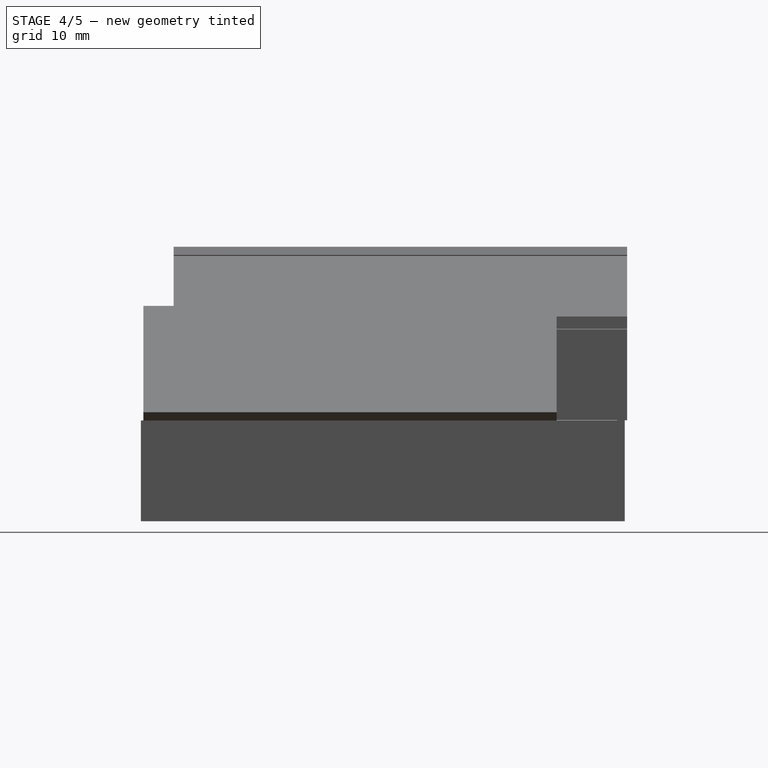
[diagram: stage 4 of 5 — right view after this stage's code; geometry added in this stage tinted green]
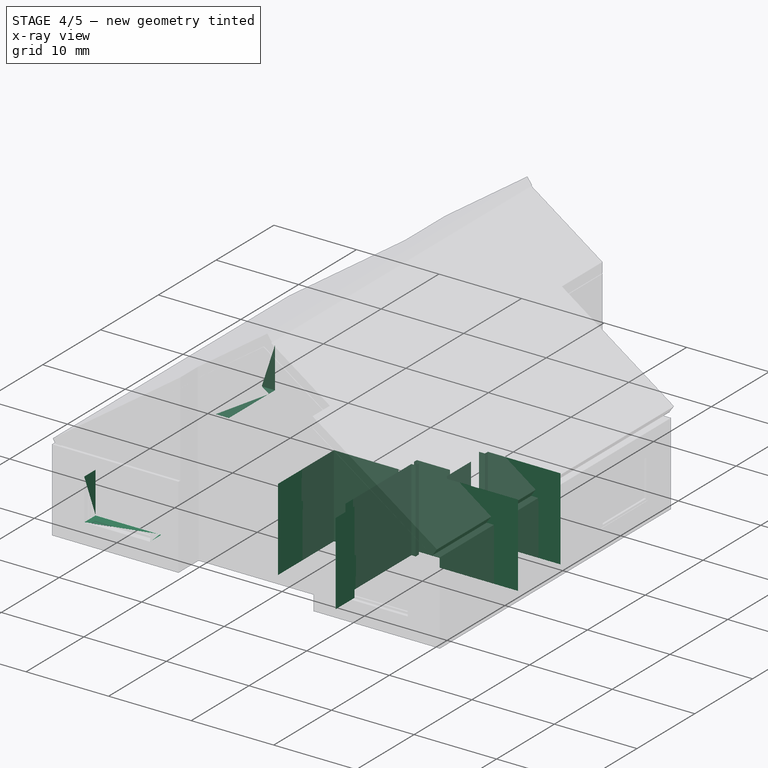
[diagram: stage 4 of 5 — x-ray composite at the iso view; earlier geometry ghosted, this stage's added geometry solid]
FEATURE [Sketcher::SketchObject] Sketch006
  MapMode = 5
  Support = -> [XY_Plane]
  sketch-geometry (5):
    g0: LineSegment StartX=-1.18741 StartY=-9.32539 StartZ=0 EndX=-1.18741 EndY=-19.043 EndZ=0
    g1: LineSegment StartX=-1.18741 StartY=-19.043 StartZ=0 EndX=3.81931 EndY=-19.043 EndZ=0
    g2: LineSegment StartX=3.81931 StartY=-19.043 StartZ=0 EndX=6.65018 EndY=-19.043 EndZ=0
    g3: LineSegment StartX=6.65018 StartY=-19.043 StartZ=0 EndX=6.65018 EndY=-9.32539 EndZ=0
    g4: LineSegment StartX=6.65018 StartY=-9.32539 StartZ=0 EndX=-1.18741 EndY=-9.32539 EndZ=0
  constraints (10):
    c: Coincident(g0,g1)
    c: Coincident(g2,g3)
    c: Coincident(g3,g4)
    c: Coincident(g4,g0)
    c: Horizontal(g1)
    c: Horizontal(g2)
    c: Horizontal(g4)
    c: Vertical(g3)
    c: Vertical(g0)
    c: Coincident(g2,g1)
FEATURE [PartDesign::Pocket] Pocket005
  BaseFeature = -> Pocket004
  Length = 5
  Length2 = 100
  Midplane = true
  Profile = -> Sketch006
  Type = 1
FEATURE [Sketcher::SketchObject] Sketch007
  MapMode = 5
  Support = -> [XY_Plane]
  sketch-geometry (18):
    g0: LineSegment StartX=6.90403 StartY=-6.52233 StartZ=0 EndX=6.90403 EndY=-7.02324 EndZ=0
    g1: LineSegment StartX=6.90403 StartY=-7.02324 StartZ=0 EndX=7.5021 EndY=-7.02324 EndZ=0
    g2: LineSegment StartX=7.5021 StartY=-7.02324 StartZ=0 EndX=7.5021 EndY=-7.58734 EndZ=0
    g3: LineSegment StartX=7.5021 StartY=-7.58734 StartZ=0 EndX=6.98462 EndY=-7.58734 EndZ=0
    g4: LineSegment StartX=6.98462 StartY=-7.58734 StartZ=0 EndX=6.98462 EndY=-19.0018 EndZ=0
    g5: LineSegment StartX=6.98462 StartY=-19.0018 StartZ=0 EndX=8.10253 EndY=-19.0018 EndZ=0
    g6: LineSegment StartX=8.10253 StartY=-19.0018 StartZ=0 EndX=8.10253 EndY=-22.3006 EndZ=0
    g7: LineSegment StartX=8.10253 StartY=-22.3006 StartZ=0 EndX=10.3412 EndY=-22.3006 EndZ=0
    g8: LineSegment StartX=10.3412 StartY=-22.3006 StartZ=0 EndX=18.3856 EndY=-22.3006 EndZ=0
    g9: LineSegment StartX=18.3856 StartY=-22.3006 StartZ=0 EndX=20.4636 EndY=-22.3006 EndZ=0
    g10: LineSegment StartX=20.4636 StartY=-22.3006 StartZ=0 EndX=20.4636 EndY=-8.39765 EndZ=0
    g11: LineSegment StartX=20.4636 StartY=-8.39765 StartZ=0 EndX=10.9794 EndY=-8.39765 EndZ=0
    g12: LineSegment StartX=10.9794 StartY=-8.39765 StartZ=0 EndX=10.9794 EndY=-7.54791 EndZ=0
    g13: LineSegment StartX=10.9794 StartY=-7.54791 StartZ=0 EndX=10.4261 EndY=-7.54791 EndZ=0
    g14: LineSegment StartX=10.4261 StartY=-7.54791 StartZ=0 EndX=10.4261 EndY=-7.06353 EndZ=0
    g15: LineSegment StartX=10.4261 StartY=-7.06353 StartZ=0 EndX=10.9092 EndY=-7.06353 EndZ=0
    g16: LineSegment StartX=10.9092 StartY=-7.06353 StartZ=0 EndX=10.9092 EndY=-6.52233 EndZ=0
    g17: LineSegment StartX=10.9092 StartY=-6.52233 StartZ=0 EndX=6.90403 EndY=-6.52233 EndZ=0
  constraints (36):
    c: Coincident(g0,g1)
    c: Coincident(g1,g2)
    c: Coincident(g2,g3)
    c: Coincident(g3,g4)
    c: Coincident(g4,g5)
    c: Coincident(g5,g6)
    c: Coincident(g6,g7)
    c: Coincident(g9,g10)
    c: Coincident(g10,g11)
    c: Horizontal(g11)
    c: Vertical(g2)
    c: Vertical(g4)
    c: Vertical(g6)
    c: Horizontal(g7)
    c: Horizontal(g9)
    c: Horizontal(g8)
    c: Horizontal(g3)
    c: Horizontal(g1)
    c: Horizontal(g5)
    c: Vertical(g10)
    c: Coincident(g12,g13)
    c: Coincident(g13,g14)
    c: Coincident(g14,g15)
    c: Coincident(g15,g16)
    c: Coincident(g16,g17)
    c: Coincident(g0,g17)
    c: Coincident(g12,g11)
    c: Vertical(g16)
    c: Vertical(g14)
    c: Vertical(g12)
    c: Vertical(g0)
    c: Horizontal(g17)
    c: Horizontal(g15)
    c: Horizontal(g13)
    c: Coincident(g8,g9)
    c: Coincident(g8,g7)
FEATURE [PartDesign::Pocket] Pocket006
  BaseFeature = -> Pocket005
  Length = 5
  Length2 = 100
  Midplane = true
  Profile = -> Sketch007
  Type = 1
FEATURE [Sketcher::SketchObject] Sketch008
  MapMode = 5
  sketch-geometry (14):
    g0: LineSegment StartX=11.5019 StartY=-3.73368 StartZ=0 EndX=11.5019 EndY=-7.89365 EndZ=0
    g1: LineSegment StartX=11.5019 StartY=-7.89365 StartZ=0 EndX=20.3679 EndY=-7.89365 EndZ=0
    g2: LineSegment StartX=20.3679 StartY=-7.89365 StartZ=0 EndX=20.3679 EndY=-5.95389 EndZ=0
    g3: LineSegment StartX=20.3679 StartY=-5.95389 StartZ=0 EndX=20.3679 EndY=-2.59785 EndZ=0
    g4: LineSegment StartX=20.3679 StartY=-2.59785 StartZ=0 EndX=20.3679 EndY=-0.882918 EndZ=0
    g5: LineSegment StartX=20.3679 StartY=-0.882918 StartZ=0 EndX=11.5557 EndY=-0.882918 EndZ=0
    g6: LineSegment StartX=11.5557 StartY=-0.882918 StartZ=0 EndX=11.5557 EndY=-1.38332 EndZ=0
    g7: LineSegment StartX=11.5557 StartY=-1.38332 StartZ=0 EndX=10.8383 EndY=-1.38332 EndZ=0
    g8: LineSegment StartX=10.8383 StartY=-1.38332 StartZ=0 EndX=10.8383 EndY=-0.96668 EndZ=0
    g9: LineSegment StartX=10.8383 StartY=-0.96668 StartZ=0 EndX=6.52614 EndY=-0.96668 EndZ=0
    g10: LineSegment StartX=6.52614 StartY=-0.96668 StartZ=0 EndX=6.52614 EndY=-6.50547 EndZ=0
    g11: LineSegment StartX=6.52614 StartY=-6.50547 StartZ=0 EndX=10.8742 EndY=-6.50547 EndZ=0
    g12: LineSegment StartX=10.8742 StartY=-6.50547 StartZ=0 EndX=10.8742 EndY=-3.71574 EndZ=0
    g13: LineSegment StartX=10.8742 StartY=-3.71574 StartZ=0 EndX=11.5019 EndY=-3.73368 EndZ=0
  constraints (27):
    c: Coincident(g0,g1)
    c: Coincident(g1,g2)
    c: Coincident(g4,g5)
    c: Coincident(g5,g6)
    c: Coincident(g6,g7)
    c: Coincident(g7,g8)
    c: Coincident(g8,g9)
    c: Coincident(g9,g10)
    c: Coincident(g10,g11)
    c: Coincident(g11,g12)
    c: Coincident(g12,g13)
    c: Coincident(g13,g0)
    c: Vertical(g8)
    c: Vertical(g6)
    c: Vertical(g0)
    c: Vertical(g12)
    c: Vertical(g10)
    c: Vertical(g3)
    c: Vertical(g4)
    c: Vertical(g2)
    c: Horizontal(g1)
    c: Horizontal(g5)
    c: Horizontal(g7)
    c: Horizontal(g9)
    c: Horizontal(g11)
    c: Coincident(g2,g3)
    c: Coincident(g4,g3)
FEATURE [PartDesign::Pocket] Pocket007
  BaseFeature = -> Pocket006
  Length = 5
  Length2 = 168
  Midplane = true
  Profile = -> Sketch008
  Type = 1
FEATURE [Part::Box] Box001  label="Куб001"
  AttacherType = Attacher::AttachEngine3D
  Height = 5
  Length = 5
  Placement = pos=(-26,4,2.5) rot=(0,0,1;0rad)
  Width = 8
FEATURE [Part::Cut] Cut
  Base = -> Pocket007
  Tool = -> Box
FEATURE [Part::Cut] Cut001
  Base = -> Cut
  Tool = -> Box001
FEATURE [Part::Box] Box003  label="Куб003"
  AttacherType = Attacher::AttachEngine3D
  Height = 5
  Length = 8
  Placement = pos=(-21,-25,2.5) rot=(0,0,1;0rad)
  Width = 5
FEATURE [Part::Cut] Cut002
  Base = -> Cut001
  Tool = -> Box002
FEATURE [Part::Cut] Cut003
  Base = -> Cut002
  Tool = -> Box003
FEATURE [Part::Cut] Cut004
  Base = -> Cut003
  Tool = -> Box004
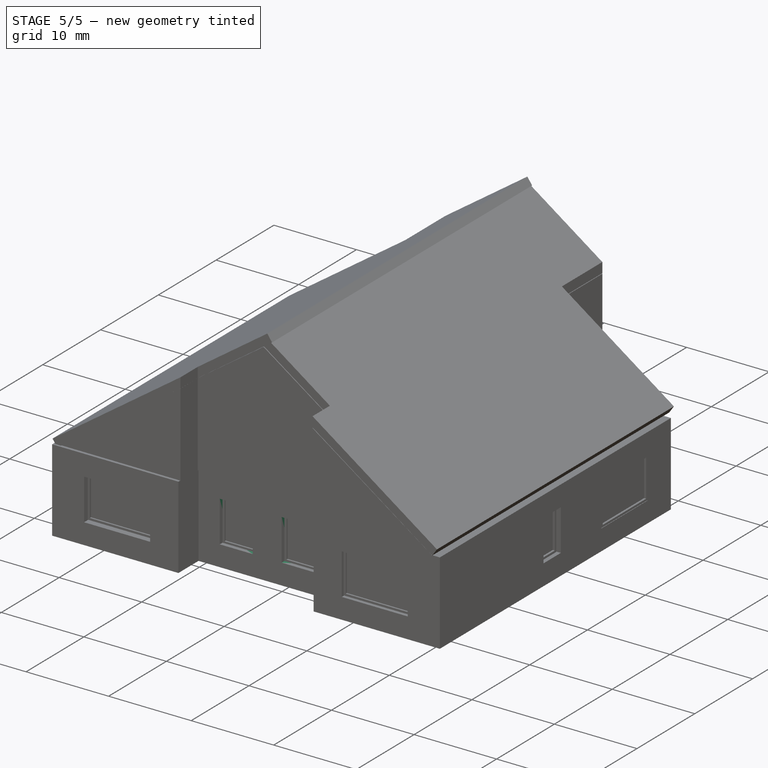
[diagram: stage 5 of 5 — iso view after this stage's code; geometry added in this stage tinted green]
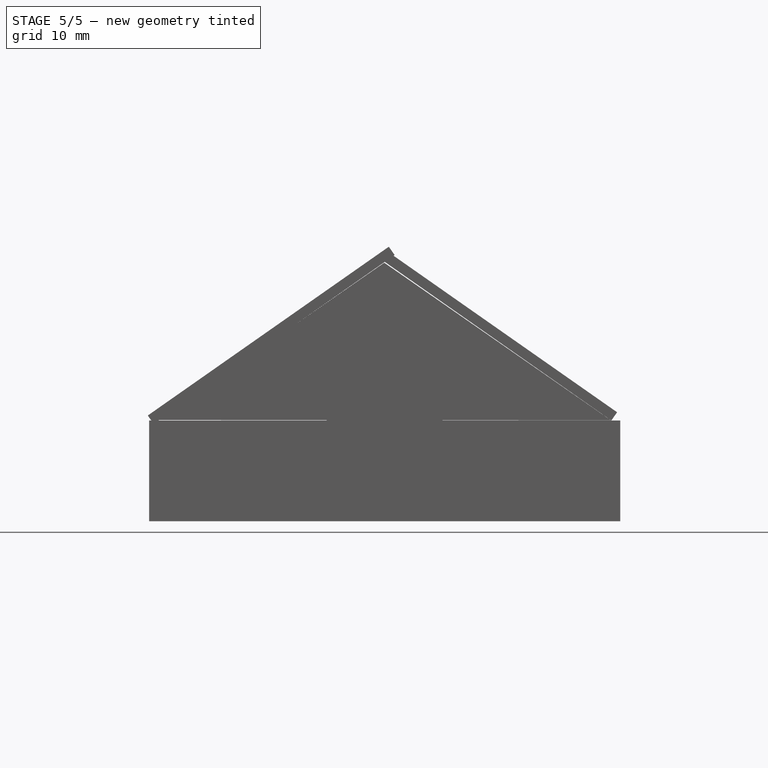
[diagram: stage 5 of 5 — front view after this stage's code; geometry added in this stage tinted green]
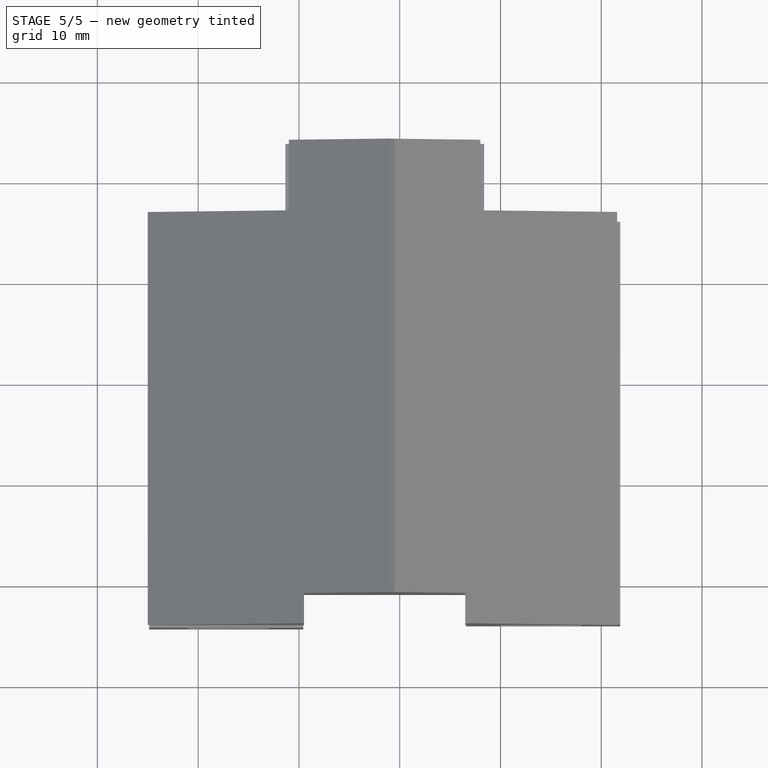
[diagram: stage 5 of 5 — top view after this stage's code; geometry added in this stage tinted green]
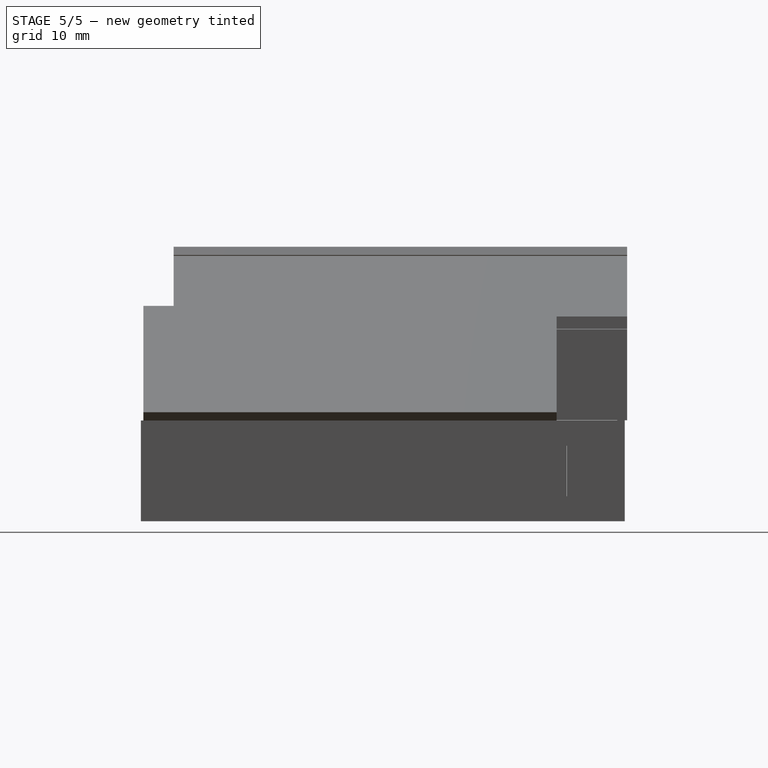
[diagram: stage 5 of 5 — right view after this stage's code; geometry added in this stage tinted green]
FEATURE [Part::Box] Box005  label="Куб005"
  AttacherType = Attacher::AttachEngine3D
  Height = 5
  Length = 4
  Placement = pos=(-7,-22,2.5) rot=(0,0,1;0rad)
  Width = 5
FEATURE [Part::Box] Box006  label="Куб006"
  AttacherType = Attacher::AttachEngine3D
  Height = 5
  Length = 5
  Placement = pos=(-26.5,-6.8,2.5) rot=(0,0,1;0rad)
  Width = 3
FEATURE [Part::Box] Box007  label="Куб007"
  AttacherType = Attacher::AttachEngine3D
  Height = 5
  Length = 5
  Placement = pos=(17.5,-6,2.5) rot=(0,0,1;0rad)
  Width = 3
FEATURE [Part::Box] Box008  label="Куб008"
  AttacherType = Attacher::AttachEngine3D
  Height = 5
  Length = 5
  Placement = pos=(-13.5,18,2.5) rot=(0,0,1;0rad)
  Width = 3
FEATURE [Part::Box] Box009  label="Куб009"
  AttacherType = Attacher::AttachEngine3D
  Height = 5
  Length = 4
  Placement = pos=(0.5,-22,2.5) rot=(0,0,1;0rad)
  Width = 5
FEATURE [Part::Cut] Cut005
  Base = -> Cut004
  Tool = -> Box009
FEATURE [Part::Cut] Cut006
  Base = -> Cut005
  Tool = -> Box008
FEATURE [Part::Cut] Cut007
  Base = -> Cut006
  Tool = -> Box006
FEATURE [Part::Cut] Cut008
  Base = -> Cut007
  Tool = -> Box007
FEATURE [Part::Cut] Cut009
  Base = -> Cut008
  Tool = -> Box005
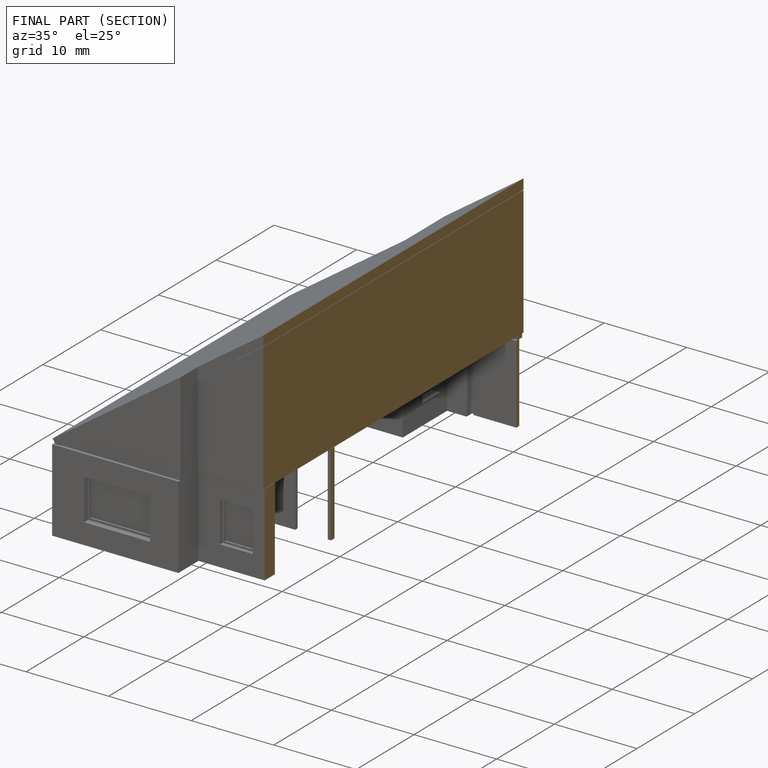
[diagram: finished part — half-section view (interior)]
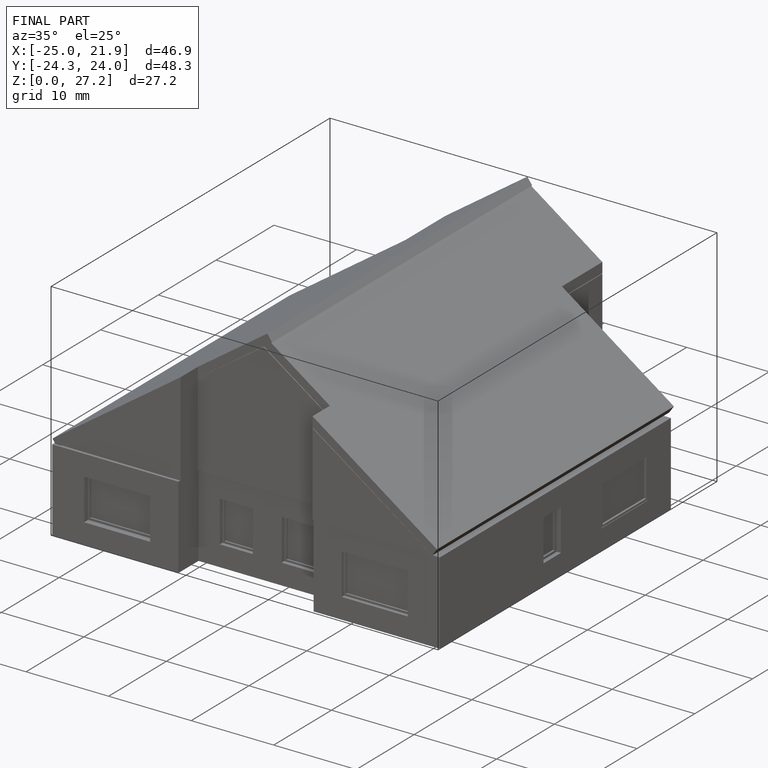
[diagram: finished part — iso view with bounding-box wireframe]
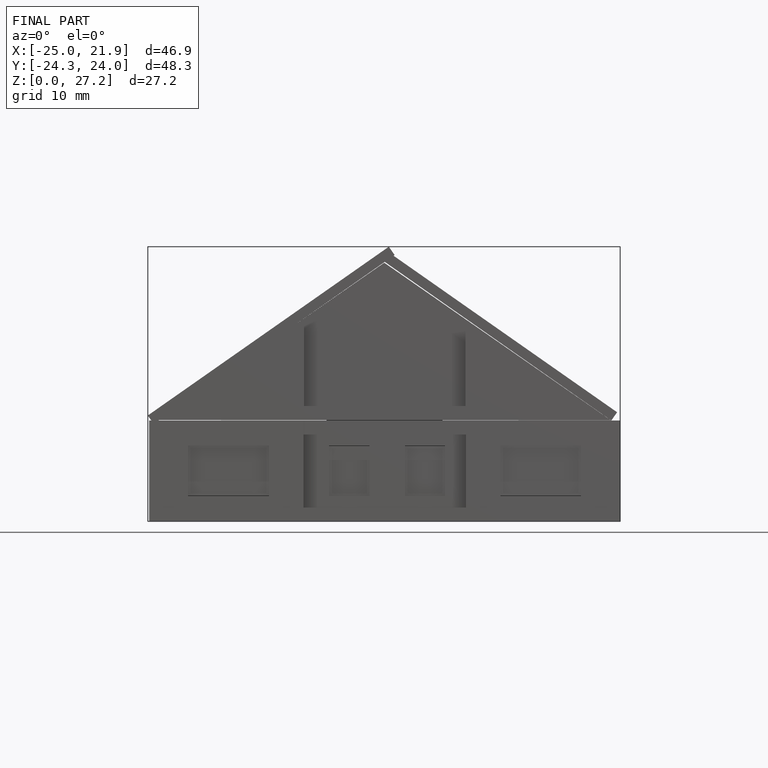
[diagram: finished part — front view with bounding-box wireframe]
